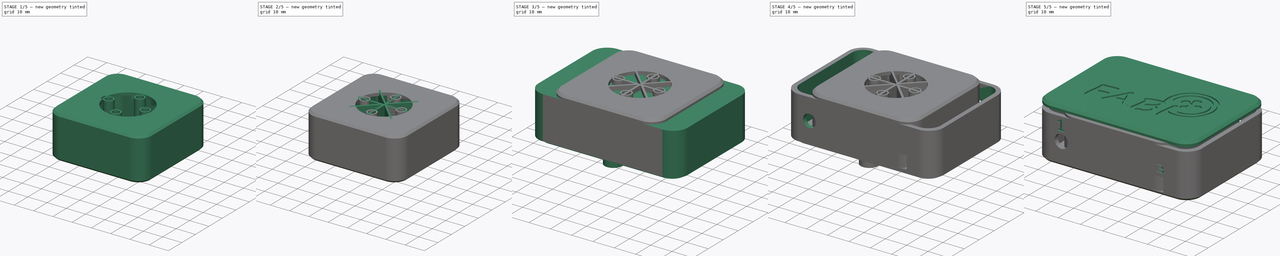
[diagram: build sequence overview — one tinted view per stage of 5, left to right]
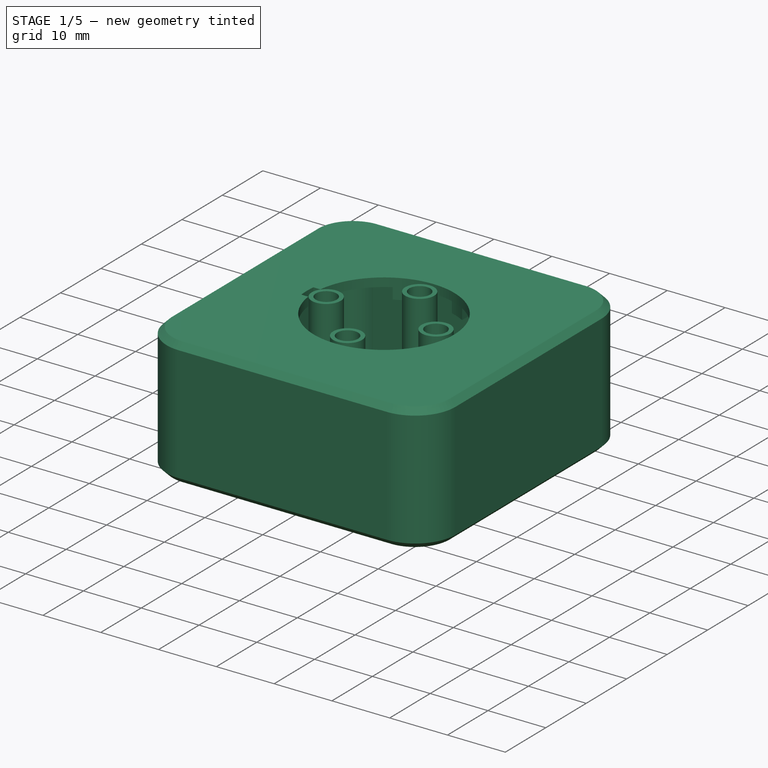
[diagram: stage 1 of 5 — iso view after this stage's code; geometry added in this stage tinted green]
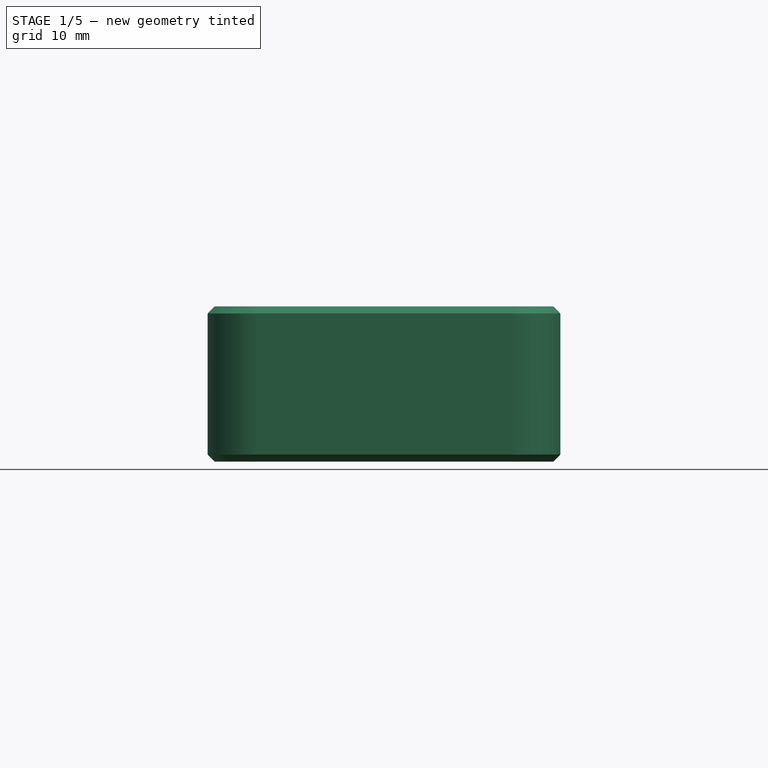
[diagram: stage 1 of 5 — front view after this stage's code; geometry added in this stage tinted green]
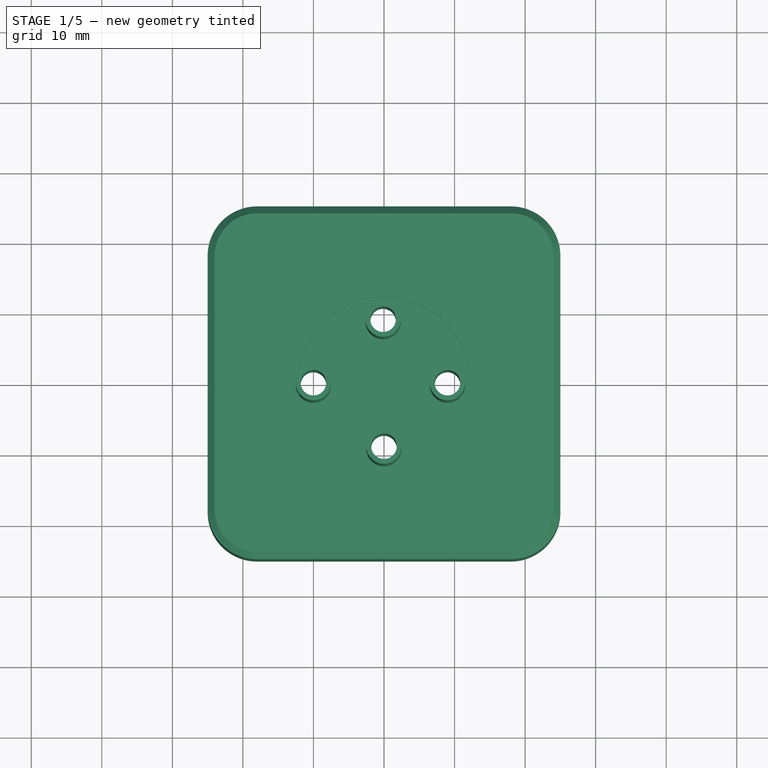
[diagram: stage 1 of 5 — top view after this stage's code; geometry added in this stage tinted green]
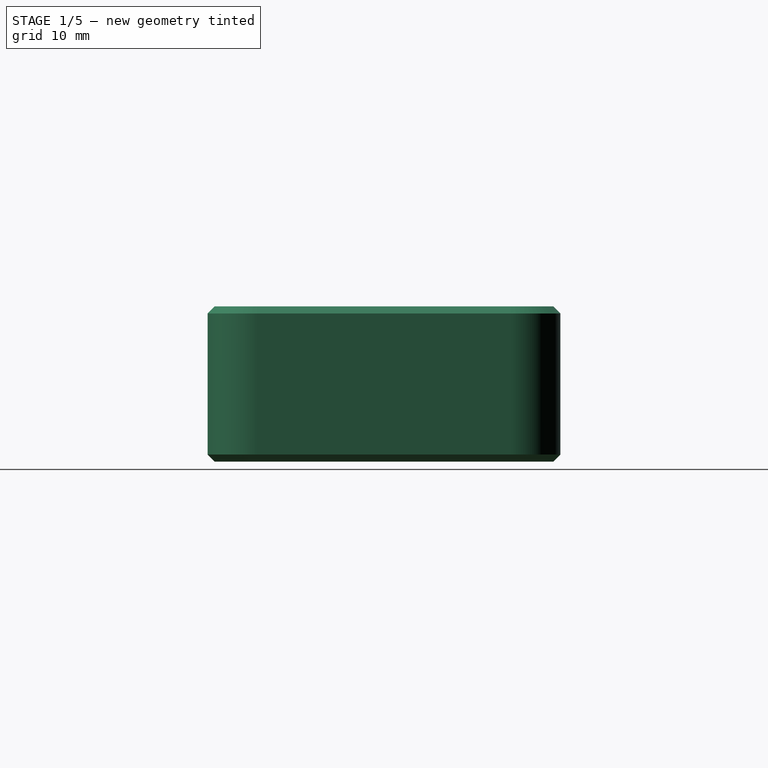
[diagram: stage 1 of 5 — right view after this stage's code; geometry added in this stage tinted green]
FCSTD DOCUMENT  (FreeCAD 0.18R4 (GitTag))
Label: FABI
License: All rights reserved
LicenseURL: http://en.wikipedia.org/wiki/All_rights_reserved
objects: Sketcher::SketchObject×27, PartDesign::Pocket×15, PartDesign::Pad×12, Part::Feature×6, PartDesign::Chamfer×5, Part::Extrusion×4, PartDesign::Body×4, App::Part×4, Part::Part2DObjectPython×3, Part::Cut×3, Part::MultiFuse×2
note: 108 computed .brp shape members not serialized (recipe doc carries the construction recipe); baked Part::Feature solids carry a one-line shape summary decoded from their .brp

FEATURE [PartDesign::Body] Body002
  Group = -> [Sketch013,Sketch017,Sketch019,Sketch012,Sketch020,Pad008,Pocket006,Pocket007,Pocket009,Pocket010,Chamfer003,Pad010,Sketch021,Sketch022,Pad009,Sketch023,Pocket011]
  Origin = -> Origin007
  Tip = -> Pocket011
FEATURE [App::Part] Part002  label="button_30mm"
  Group = -> [Body002]
  License = CC BY 3.0
  LicenseURL = http://creativecommons.org/licenses/by/3.0/
  Origin = -> Origin006
FEATURE [Sketcher::SketchObject] Sketch024
  MapMode = 5
  sketch-geometry (8):
    g0: ArcOfCircle CenterX=18 CenterY=-18 CenterZ=0 NormalX=0 NormalY=0 NormalZ=1 AngleXU=0 Radius=7 StartAngle=4.71239 EndAngle=6.28319
    g1: ArcOfCircle CenterX=18 CenterY=18 CenterZ=0 NormalX=0 NormalY=0 NormalZ=1 AngleXU=0 Radius=7 StartAngle=2.6507e-08 EndAngle=1.5708
    g2: LineSegment StartX=25 StartY=-18 StartZ=0 EndX=25 EndY=18 EndZ=0
    g3: ArcOfCircle CenterX=-18 CenterY=-18 CenterZ=0 NormalX=0 NormalY=0 NormalZ=1 AngleXU=0 Radius=7 StartAngle=3.14159 EndAngle=4.71239
    g4: ArcOfCircle CenterX=-18 CenterY=18 CenterZ=0 NormalX=0 NormalY=0 NormalZ=1 AngleXU=0 Radius=7 StartAngle=1.5708 EndAngle=3.14159
    g5: LineSegment StartX=-25 StartY=18 StartZ=0 EndX=-25 EndY=-18 EndZ=0
    g6: LineSegment StartX=18 StartY=25 StartZ=0 EndX=-18 EndY=25 EndZ=0
    g7: LineSegment StartX=18 StartY=-25 StartZ=0 EndX=-18 EndY=-25 EndZ=0
  constraints (12):
    c: Coincident(g2,g0)
    c: Coincident(g2,g1)
    c: Vertical(g2)
    c: Coincident(g5,g4)
    c: Coincident(g5,g3)
    c: Vertical(g5)
    c: Coincident(g6,g1)
    c: Coincident(g6,g4)
    c: Horizontal(g6)
    c: Coincident(g7,g0)
    c: Coincident(g7,g3)
    c: Horizontal(g7)
FEATURE [Sketcher::SketchObject] Sketch025
  AttachmentOffset = pos=(0,0,1.5) rot=(0,0,1;0rad)
  MapMode = 5
  Placement = pos=(0,0,1.5) rot=(0,0,1;0rad)
  sketch-geometry (8):
    g0: ArcOfCircle CenterX=17.4943 CenterY=-17.5057 CenterZ=0 NormalX=0 NormalY=0 NormalZ=1 AngleXU=0 Radius=5.52676 StartAngle=4.62283 EndAngle=6.37081
    g1: ArcOfCircle CenterX=18.4999 CenterY=18.5001 CenterZ=0 NormalX=0 NormalY=0 NormalZ=1 AngleXU=0 Radius=4.52762 StartAngle=6.17251 EndAngle=7.96463
    g2: LineSegment StartX=22.9999 StartY=18 StartZ=0 EndX=22.9999 EndY=-17.022 EndZ=0
    g3: ArcOfCircle CenterX=-17.4999 CenterY=-17.5001 CenterZ=0 NormalX=0 NormalY=0 NormalZ=1 AngleXU=0 Radius=5.53289 StartAngle=3.05108 EndAngle=4.80301
    g4: ArcOfCircle CenterX=-18.5051 CenterY=18.4949 CenterZ=0 NormalX=0 NormalY=0 NormalZ=1 AngleXU=0 Radius=4.53329 StartAngle=1.45915 EndAngle=3.25324
    g5: LineSegment StartX=-23.0101 StartY=-17 StartZ=0 EndX=-23.0101 EndY=17.9899 EndZ=0
    g6: LineSegment StartX=18 StartY=23 StartZ=0 EndX=-18 EndY=23 EndZ=0
    g7: LineSegment StartX=17 StartY=-23.0103 StartZ=0 EndX=-16.9992 EndY=-23.0103 EndZ=0
  constraints (16):
    c: Coincident(g2,g1)
    c: Coincident(g2,g0)
    c: Vertical(g2)
    c: Coincident(g5,g3)
    c: Coincident(g5,g4)
    c: Vertical(g5)
    c: Coincident(g6,g1)
    c: Coincident(g6,g4)
    c: Horizontal(g6)
    c: Coincident(g7,g0)
    c: Coincident(g7,g3)
    c: Horizontal(g7)
    c: Block(g5)
    c: Block(g7)
    c: Block(g6)
    c: Block(g2)
FEATURE [Sketcher::SketchObject] Sketch026
  AttachmentOffset = pos=(0,0,-28) rot=(0,0,1;0rad)
  MapMode = 5
  Placement = pos=(0,28,1) rot=(1,0,0;1.5708rad)
  sketch-geometry (1):
    g0: Circle CenterX=0 CenterY=9 CenterZ=0 NormalX=0 NormalY=0 NormalZ=1 AngleXU=0 Radius=2
FEATURE [Sketcher::SketchObject] Sketch027
  MapMode = 5
  sketch-geometry (4):
    g0: Circle CenterX=-10 CenterY=0 CenterZ=0 NormalX=0 NormalY=0 NormalZ=1 AngleXU=0 Radius=2
    g1: Circle CenterX=9 CenterY=0 CenterZ=0 NormalX=0 NormalY=0 NormalZ=1 AngleXU=0 Radius=2
    g2: Circle CenterX=0 CenterY=-9 CenterZ=0 NormalX=0 NormalY=0 NormalZ=1 AngleXU=0 Radius=2
    g3: Circle CenterX=0 CenterY=9 CenterZ=0 NormalX=0 NormalY=0 NormalZ=1 AngleXU=0 Radius=2
  constraints (2):
    c: PointOnObject(g0,g-1)
    c: PointOnObject(g1,g-1)
FEATURE [Sketcher::SketchObject] Sketch028
  MapMode = 5
  Placement = pos=(0,0,20) rot=(0,0,1;0rad)
  sketch-geometry (4):
    g0: ArcOfCircle CenterX=0.000385777 CenterY=0 CenterZ=0 NormalX=0 NormalY=0 NormalZ=1 AngleXU=0 Radius=12.1561 StartAngle=3.26398 EndAngle=9.30107
    g1: ArcOfCircle CenterX=0 CenterY=0 CenterZ=0 NormalX=0 NormalY=0 NormalZ=1 AngleXU=0 Radius=13.3545 StartAngle=3.02903 EndAngle=3.25295
    g2: LineSegment StartX=-13.27 StartY=1.5 StartZ=0 EndX=-12.0629 EndY=1.5 EndZ=0
    g3: LineSegment StartX=-13.2718 StartY=-1.48408 StartZ=0 EndX=-12.0648 EndY=-1.48408 EndZ=0
  constraints (8):
    c: PointOnObject(g0,g-1)
    c: Coincident(g1,g-1)
    c: Horizontal(g2)
    c: Horizontal(g3)
    c: Coincident(g2,g0)
    c: Coincident(g3,g0)
    c: Coincident(g2,g1)
    c: Coincident(g3,g1)
FEATURE [PartDesign::Pad] Pad011
  Length = 22
  Length2 = 100
  Profile = -> Sketch024
  Type = 0
FEATURE [PartDesign::Pocket] Pocket012
  BaseFeature = -> Pad011
  Length = 19
  Length2 = 100
  Profile = -> Sketch025
  Reversed = true
  Type = 0
FEATURE [PartDesign::Pocket] Pocket013
  BaseFeature = -> Pocket012
  Length = 6
  Length2 = 100
  Profile = -> Sketch026
  Reversed = true
  Type = 0
FEATURE [PartDesign::Pocket] Pocket014
  BaseFeature = -> Pocket013
  Length = 12
  Length2 = 100
  Profile = -> Sketch027
  Reversed = true
  Type = 0
FEATURE [PartDesign::Pocket] Pocket015
  BaseFeature = -> Pocket014
  Length = 3
  Length2 = 100
  Profile = -> Sketch028
  Reversed = true
  Type = 0
FEATURE [PartDesign::Chamfer] Chamfer004
  Base = -> Pocket015 [Edge9,Edge12,Edge14,Edge15,Edge13,Edge11,Edge6,Edge3,Edge22,Edge10,Edge4,Edge7,Edge21,Edge23,Edge24]
  BaseFeature = -> Pocket015
  Size = 1
FEATURE [Sketcher::SketchObject] Sketch029
  AttachmentOffset = pos=(0,0,1.5) rot=(0,0,1;0rad)
  MapMode = 5
  Placement = pos=(0,0,1.5) rot=(0,0,1;0rad)
  Support = -> [XY_Plane009]
  sketch-geometry (8):
    g0: Circle CenterX=-0.127491 CenterY=9 CenterZ=0 NormalX=0 NormalY=0 NormalZ=1 AngleXU=0 Radius=1.81071
    g1: Circle CenterX=0 CenterY=-9 CenterZ=0 NormalX=0 NormalY=0 NormalZ=1 AngleXU=0 Radius=1.81071
    g2: Circle CenterX=9 CenterY=0 CenterZ=0 NormalX=0 NormalY=0 NormalZ=1 AngleXU=0 Radius=1.81071
    g3: Circle CenterX=-10 CenterY=0 CenterZ=0 NormalX=0 NormalY=0 NormalZ=1 AngleXU=0 Radius=1.81071
    g4: Circle CenterX=-10 CenterY=0 CenterZ=0 NormalX=0 NormalY=0 NormalZ=1 AngleXU=0 Radius=2.5
    g5: Circle CenterX=-0.127491 CenterY=9 CenterZ=0 NormalX=0 NormalY=0 NormalZ=1 AngleXU=0 Radius=2.5
    g6: Circle CenterX=9 CenterY=0 CenterZ=0 NormalX=0 NormalY=0 NormalZ=1 AngleXU=0 Radius=2.5
    g7: Circle CenterX=0 CenterY=-9 CenterZ=0 NormalX=0 NormalY=0 NormalZ=1 AngleXU=0 Radius=2.5
  constraints (3):
    c: Coincident(g4,g3)
    c: Coincident(g5,g0)
    c: Coincident(g7,g1)
FEATURE [Sketcher::SketchObject] Sketch030
  AttachmentOffset = pos=(0,0,18.5) rot=(0,0,1;0rad)
  MapMode = 5
  Placement = pos=(0,0,18.5) rot=(0,0,1;0rad)
  Support = -> [XY_Plane009]
  sketch-geometry (16):
    g0: LineSegment StartX=3.5 StartY=14 StartZ=0 EndX=6 EndY=14 EndZ=0
    g1: LineSegment StartX=6 StartY=14 StartZ=0 EndX=6 EndY=10.7283 EndZ=0
    g2: LineSegment StartX=3.5 StartY=11.7833 StartZ=0 EndX=3.5 EndY=14 EndZ=0
    g3: LineSegment StartX=-6 StartY=14 StartZ=0 EndX=-3.5 EndY=14 EndZ=0
    g4: LineSegment StartX=-3.5 StartY=14 StartZ=0 EndX=-3.5 EndY=11.7833 EndZ=0
    g5: LineSegment StartX=-6 StartY=10.7283 StartZ=0 EndX=-6 EndY=14 EndZ=0
    g6: LineSegment StartX=6 StartY=-10.7283 StartZ=0 EndX=6 EndY=-14 EndZ=0
    g7: LineSegment StartX=6 StartY=-14 StartZ=0 EndX=3.5 EndY=-14 EndZ=0
    g8: LineSegment StartX=3.5 StartY=-14 StartZ=0 EndX=3.5 EndY=-11.7833 EndZ=0
    g9: LineSegment StartX=-3.5 StartY=-11.7833 StartZ=0 EndX=-3.5 EndY=-13.9421 EndZ=0
    g10: LineSegment StartX=-3.5 StartY=-13.9421 StartZ=0 EndX=-5.97519 EndY=-13.9421 EndZ=0
    g11: LineSegment StartX=-5.97519 StartY=-13.9421 StartZ=0 EndX=-5.97519 EndY=-10.7421 EndZ=0
    g12: ArcOfCircle CenterX=0 CenterY=0 CenterZ=0 NormalX=0 NormalY=0 NormalZ=1 AngleXU=0 Radius=12.2921 StartAngle=1.06086 EndAngle=1.28207
    g13: ArcOfCircle CenterX=0 CenterY=0 CenterZ=0 NormalX=0 NormalY=0 NormalZ=1 AngleXU=0 Radius=12.2921 StartAngle=5.00112 EndAngle=5.22232
    g14: ArcOfCircle CenterX=0 CenterY=0 CenterZ=0 NormalX=0 NormalY=0 NormalZ=1 AngleXU=0 Radius=12.2921 StartAngle=4.20477 EndAngle=4.42366
    g15: ArcOfCircle CenterX=0 CenterY=0 CenterZ=0 NormalX=0 NormalY=0 NormalZ=1 AngleXU=0 Radius=12.2921 StartAngle=1.85953 EndAngle=2.08073
  constraints (35):
    c: Coincident(g0,g1)
    c: Coincident(g2,g0)
    c: Horizontal(g0)
    c: Vertical(g1)
    c: Vertical(g2)
    c: Coincident(g3,g4)
    c: Coincident(g5,g3)
    c: Horizontal(g3)
    c: Vertical(g4)
    c: Vertical(g5)
    c: Coincident(g6,g7)
    c: Coincident(g7,g8)
    c: Horizontal(g7)
    c: Vertical(g6)
    c: Vertical(g8)
    c: Coincident(g9,g10)
    c: Coincident(g10,g11)
    c: Horizontal(g10)
    c: Vertical(g9)
    c: Vertical(g11)
    c: Coincident(g12,g-1)
    c: PointOnObject(g13,g6)
    c: Equal(g12,g13)
    c: Coincident(g13,g8)
    c: Coincident(g12,g13)
    c: Coincident(g9,g14)
    c: Equal(g12,g14)
    c: Coincident(g14,g11)
    c: Coincident(g12,g14)
    c: Coincident(g5,g15)
    c: Coincident(g1,g12)
    c: Equal(g12,g15)
    c: Coincident(g12,g2)
    c: Coincident(g15,g4)
    c: Coincident(g12,g15)
FEATURE [PartDesign::Pad] Pad013
  BaseFeature = -> Chamfer004
  Length = 2
  Length2 = 100
  Profile = -> Sketch030
  Type = 0
FEATURE [PartDesign::Pad] Pad012  label="support001"
  BaseFeature = -> Pad013
  Length = 20.5
  Length2 = 100
  Profile = -> Sketch029
  Refine = true
  Type = 0
FEATURE [PartDesign::Body] Body003
  Group = -> [Sketch025,Sketch026,Sketch027,Sketch024,Sketch028,Pad011,Pocket012,Pocket013,Pocket014,Pocket015,Chamfer004,Pad013,Sketch029,Sketch030,Pad012]
  Origin = -> Origin009
  Tip = -> Pad012
FEATURE [App::Part] Part003  label="button_24mm"
  Group = -> [Body003]
  License = CC BY 3.0
  LicenseURL = http://creativecommons.org/licenses/by/3.0/
  Origin = -> Origin008
note: 3 file-system paths scrubbed to <path> (originals preserved in the JSON sidecar)
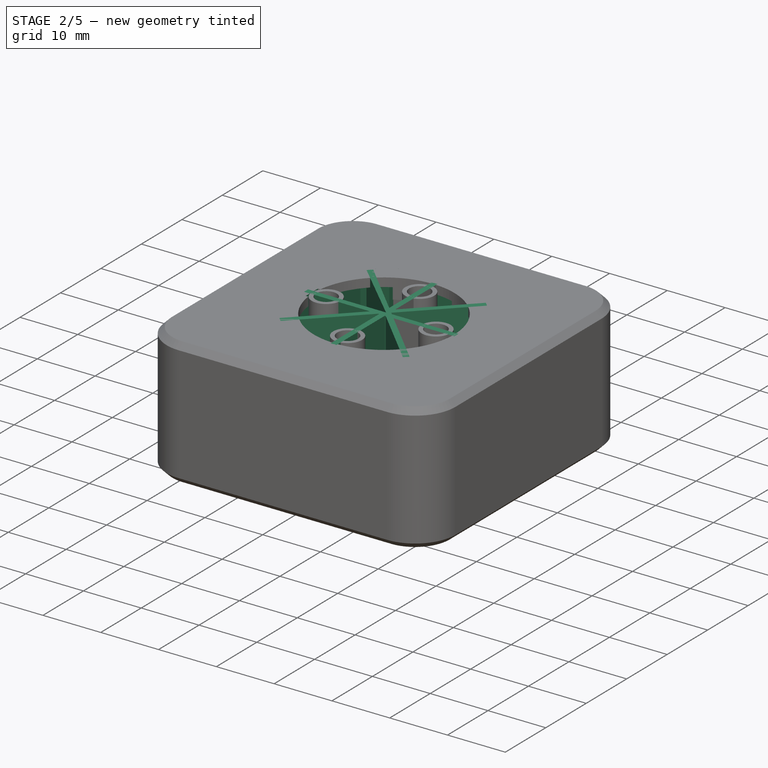
[diagram: stage 2 of 5 — iso view after this stage's code; geometry added in this stage tinted green]
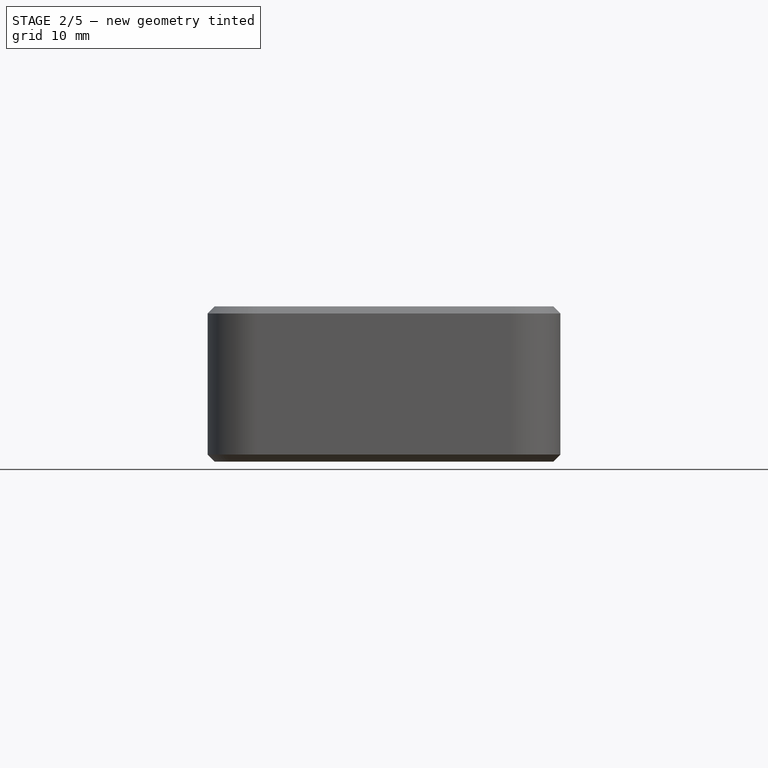
[diagram: stage 2 of 5 — front view after this stage's code; geometry added in this stage tinted green]
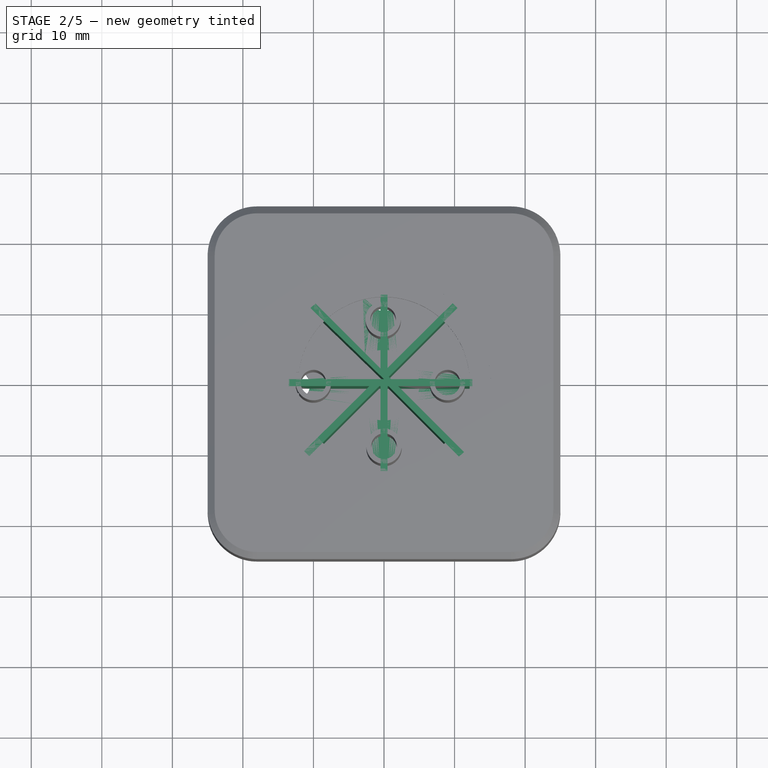
[diagram: stage 2 of 5 — top view after this stage's code; geometry added in this stage tinted green]
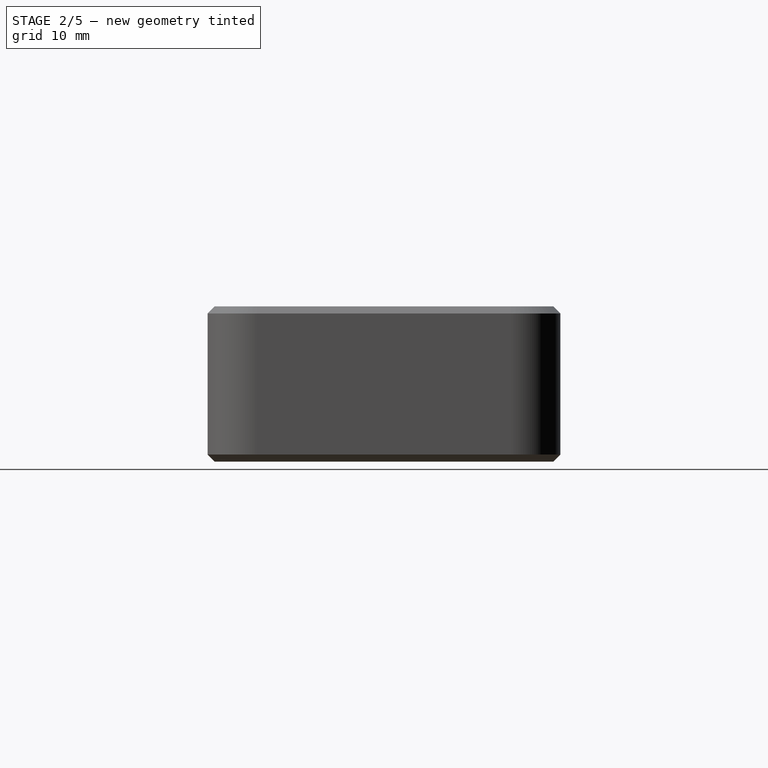
[diagram: stage 2 of 5 — right view after this stage's code; geometry added in this stage tinted green]
FEATURE [App::Part] Part001  label="cover"
  Group = -> [path4500,path4500004,path4500006,path4500008,path4500010,path4500055,Cut001,Fusion001,Extrude003,Body001,Cut]
  License = CC BY 3.0
  LicenseURL = http://creativecommons.org/licenses/by/3.0/
  Origin = -> Origin
FEATURE [Sketcher::SketchObject] Sketch012
  MapMode = 5
  sketch-geometry (8):
    g0: ArcOfCircle CenterX=18 CenterY=-18 CenterZ=0 NormalX=0 NormalY=0 NormalZ=1 AngleXU=0 Radius=7 StartAngle=4.71239 EndAngle=6.28319
    g1: ArcOfCircle CenterX=18 CenterY=18 CenterZ=0 NormalX=0 NormalY=0 NormalZ=1 AngleXU=0 Radius=7 StartAngle=2.6507e-08 EndAngle=1.5708
    g2: LineSegment StartX=25 StartY=-18 StartZ=0 EndX=25 EndY=18 EndZ=0
    g3: ArcOfCircle CenterX=-18 CenterY=-18 CenterZ=0 NormalX=0 NormalY=0 NormalZ=1 AngleXU=0 Radius=7 StartAngle=3.14159 EndAngle=4.71239
    g4: ArcOfCircle CenterX=-18 CenterY=18 CenterZ=0 NormalX=0 NormalY=0 NormalZ=1 AngleXU=0 Radius=7 StartAngle=1.5708 EndAngle=3.14159
    g5: LineSegment StartX=-25 StartY=18 StartZ=0 EndX=-25 EndY=-18 EndZ=0
    g6: LineSegment StartX=18 StartY=25 StartZ=0 EndX=-18 EndY=25 EndZ=0
    g7: LineSegment StartX=18 StartY=-25 StartZ=0 EndX=-18 EndY=-25 EndZ=0
  constraints (12):
    c: Coincident(g2,g0)
    c: Coincident(g2,g1)
    c: Vertical(g2)
    c: Coincident(g5,g4)
    c: Coincident(g5,g3)
    c: Vertical(g5)
    c: Coincident(g6,g1)
    c: Coincident(g6,g4)
    c: Horizontal(g6)
    c: Coincident(g7,g0)
    c: Coincident(g7,g3)
    c: Horizontal(g7)
FEATURE [Sketcher::SketchObject] Sketch013
  AttachmentOffset = pos=(0,0,1.5) rot=(0,0,1;0rad)
  MapMode = 5
  Placement = pos=(0,0,1.5) rot=(0,0,1;0rad)
  sketch-geometry (8):
    g0: ArcOfCircle CenterX=17.4943 CenterY=-17.5057 CenterZ=0 NormalX=0 NormalY=0 NormalZ=1 AngleXU=0 Radius=5.52676 StartAngle=4.62283 EndAngle=6.37081
    g1: ArcOfCircle CenterX=18.4999 CenterY=18.5001 CenterZ=0 NormalX=0 NormalY=0 NormalZ=1 AngleXU=0 Radius=4.52762 StartAngle=6.17251 EndAngle=7.96463
    g2: LineSegment StartX=22.9999 StartY=18 StartZ=0 EndX=22.9999 EndY=-17.022 EndZ=0
    g3: ArcOfCircle CenterX=-17.4999 CenterY=-17.5001 CenterZ=0 NormalX=0 NormalY=0 NormalZ=1 AngleXU=0 Radius=5.53289 StartAngle=3.05108 EndAngle=4.80301
    g4: ArcOfCircle CenterX=-18.5051 CenterY=18.4949 CenterZ=0 NormalX=0 NormalY=0 NormalZ=1 AngleXU=0 Radius=4.53329 StartAngle=1.45915 EndAngle=3.25324
    g5: LineSegment StartX=-23.0101 StartY=-17 StartZ=0 EndX=-23.0101 EndY=17.9899 EndZ=0
    g6: LineSegment StartX=18 StartY=23 StartZ=0 EndX=-18 EndY=23 EndZ=0
    g7: LineSegment StartX=17 StartY=-23.0103 StartZ=0 EndX=-16.9992 EndY=-23.0103 EndZ=0
  constraints (16):
    c: Coincident(g2,g1)
    c: Coincident(g2,g0)
    c: Vertical(g2)
    c: Coincident(g5,g3)
    c: Coincident(g5,g4)
    c: Vertical(g5)
    c: Coincident(g6,g1)
    c: Coincident(g6,g4)
    c: Horizontal(g6)
    c: Coincident(g7,g0)
    c: Coincident(g7,g3)
    c: Horizontal(g7)
    c: Block(g5)
    c: Block(g7)
    c: Block(g6)
    c: Block(g2)
FEATURE [Sketcher::SketchObject] Sketch017
  AttachmentOffset = pos=(0,0,-28) rot=(0,0,1;0rad)
  MapMode = 5
  Placement = pos=(0,28,1) rot=(1,0,0;1.5708rad)
  sketch-geometry (1):
    g0: Circle CenterX=0 CenterY=9 CenterZ=0 NormalX=0 NormalY=0 NormalZ=1 AngleXU=0 Radius=2
FEATURE [Sketcher::SketchObject] Sketch019
  MapMode = 5
  sketch-geometry (5):
    g0: Circle CenterX=-12.5 CenterY=0 CenterZ=0 NormalX=0 NormalY=0 NormalZ=1 AngleXU=0 Radius=2
    g1: Circle CenterX=12.5 CenterY=0 CenterZ=0 NormalX=0 NormalY=0 NormalZ=1 AngleXU=0 Radius=2
    g2: Circle CenterX=0 CenterY=-12.5 CenterZ=0 NormalX=0 NormalY=0 NormalZ=1 AngleXU=0 Radius=2
    g3: Circle CenterX=0 CenterY=12.5 CenterZ=0 NormalX=0 NormalY=0 NormalZ=1 AngleXU=0 Radius=2
    g4: Circle CenterX=0 CenterY=0 CenterZ=0 NormalX=0 NormalY=0 NormalZ=1 AngleXU=0 Radius=5
  constraints (3):
    c: PointOnObject(g0,g-1)
    c: PointOnObject(g1,g-1)
    c: Coincident(g4,g-1)
FEATURE [Sketcher::SketchObject] Sketch020
  MapMode = 5
  Placement = pos=(0,0,20) rot=(0,0,1;0rad)
  sketch-geometry (1):
    g0: Circle CenterX=0 CenterY=0 CenterZ=0 NormalX=0 NormalY=0 NormalZ=1 AngleXU=0 Radius=15.1372
  constraints (1):
    c: PointOnObject(g0,g-1)
FEATURE [PartDesign::Pad] Pad008
  Length = 22
  Length2 = 100
  Profile = -> Sketch012
  Type = 0
FEATURE [PartDesign::Pocket] Pocket006
  BaseFeature = -> Pad008
  Length = 19
  Length2 = 100
  Profile = -> Sketch013
  Reversed = true
  Type = 0
FEATURE [PartDesign::Pocket] Pocket007
  BaseFeature = -> Pocket006
  Length = 6
  Length2 = 100
  Profile = -> Sketch017
  Reversed = true
  Type = 0
FEATURE [PartDesign::Pocket] Pocket009
  BaseFeature = -> Pocket007
  Length = 12
  Length2 = 100
  Profile = -> Sketch019
  Reversed = true
  Type = 0
FEATURE [PartDesign::Pocket] Pocket010
  BaseFeature = -> Pocket009
  Length = 3
  Length2 = 100
  Profile = -> Sketch020
  Reversed = true
  Type = 0
FEATURE [PartDesign::Chamfer] Chamfer003
  Base = -> Pocket010 [Edge9,Edge12,Edge14,Edge15,Edge13,Edge11,Edge6,Edge3,Edge22,Edge10,Edge4,Edge7,Edge21,Edge23,Edge25,Edge24]
  BaseFeature = -> Pocket010
  Size = 1
FEATURE [Sketcher::SketchObject] Sketch021
  AttachmentOffset = pos=(0,0,1.5) rot=(0,0,1;0rad)
  MapMode = 5
  Placement = pos=(0,0,1.5) rot=(0,0,1;0rad)
  Support = -> [XY_Plane007]
  sketch-geometry (108):
    g0: LineSegment StartX=-1.08501 StartY=0.5 StartZ=0 EndX=-12.5 EndY=0.5 EndZ=0
    g1: LineSegment StartX=0.5 StartY=-0.5 StartZ=0 EndX=0.5 EndY=-12.5 EndZ=0
    g2: LineSegment StartX=0.5 StartY=-0.5 StartZ=0 EndX=0.644175 EndY=-0.5 EndZ=0
    g3: LineSegment StartX=0.5 StartY=2.07862 StartZ=0 EndX=9.72929 EndY=11.2707 EndZ=0
    g4: LineSegment StartX=0.660588 StartY=0.839412 StartZ=0 EndX=1 EndY=0.5 EndZ=0
    g5: LineSegment StartX=-0.5 StartY=2 StartZ=0 EndX=-0.5 EndY=12.4858 EndZ=0
    g6: LineSegment StartX=0 StartY=0.5 StartZ=0 EndX=-10.4261 EndY=10.5737 EndZ=0
    g7: LineSegment StartX=-1.08501 StartY=0.5 StartZ=0 EndX=0 EndY=0.5 EndZ=0
    g8: LineSegment StartX=-0.680918 StartY=-0.5 StartZ=0 EndX=-0.5 EndY=-0.5 EndZ=0
    g9: LineSegment StartX=-0.680918 StartY=-0.5 StartZ=0 EndX=-10.606 EndY=-10.4096 EndZ=0
    g10: LineSegment StartX=2 StartY=-0.5 StartZ=0 EndX=12.519 EndY=-0.5 EndZ=0
    g11: LineSegment StartX=2 StartY=-0.5 StartZ=0 EndX=11.3505 EndY=-9.85049 EndZ=0
    g12: LineSegment StartX=9.72929 StartY=11.2707 StartZ=0 EndX=10.4182 EndY=10.5818 EndZ=0
    g13: LineSegment StartX=10.4182 StartY=10.5818 StartZ=0 EndX=0.660588 EndY=0.839412 EndZ=0
    g14: LineSegment StartX=14.8752 StartY=0.5 StartZ=0 EndX=14.8752 EndY=-0.5 EndZ=0
    g15: LineSegment StartX=11.3505 StartY=-9.85049 StartZ=0 EndX=10.6164 EndY=-10.4753 EndZ=0
    g16: LineSegment StartX=-0.5 StartY=-14.8845 StartZ=0 EndX=0.5 EndY=-14.8845 EndZ=0
    g17: LineSegment StartX=-11.3245 StartY=-9.69817 StartZ=0 EndX=-10.606 EndY=-10.4096 EndZ=0
    g18: LineSegment StartX=-14.8477 StartY=0.5 StartZ=0 EndX=-14.8477 EndY=-0.5 EndZ=0
    g19: LineSegment StartX=-9.71926 StartY=11.2193 StartZ=0 EndX=-10.4261 EndY=10.5737 EndZ=0
    g20: LineSegment StartX=-0.5 StartY=14.854 StartZ=0 EndX=0.5 EndY=14.854 EndZ=0
    g21: LineSegment StartX=-9.71926 StartY=11.2193 StartZ=0 EndX=-0.5 EndY=2 EndZ=0
    g22: LineSegment StartX=0.5 StartY=14.854 StartZ=0 EndX=0.5 EndY=13.4858 EndZ=0
    g23: LineSegment StartX=14.8752 StartY=0.5 StartZ=0 EndX=13.519 EndY=0.5 EndZ=0
    g24: LineSegment StartX=10.6164 StartY=-10.4753 StartZ=0 EndX=0.644175 EndY=-0.5 EndZ=0
    g25: LineSegment StartX=-0.5 StartY=-14.8845 StartZ=0 EndX=-0.5 EndY=-13.5 EndZ=0
    g26: LineSegment StartX=-11.3245 StartY=-9.69817 StartZ=0 EndX=-2.08906 EndY=-0.5 EndZ=0
    g27: LineSegment StartX=-14.8477 StartY=-0.5 StartZ=0 EndX=-13.5 EndY=-0.5 EndZ=0
    g28: LineSegment StartX=-13.5 StartY=3 StartZ=0 EndX=-12.5 EndY=3 EndZ=0
    g29: LineSegment StartX=-12.5 StartY=3 StartZ=0 EndX=-12.5 EndY=0.5 EndZ=0
    g30: LineSegment StartX=-12.5 StartY=-3 StartZ=0 EndX=-13.5 EndY=-3 EndZ=0
    g31: LineSegment StartX=-13.5 StartY=-3 StartZ=0 EndX=-13.5 EndY=-0.5 EndZ=0
    g32: LineSegment StartX=-3 StartY=13.4858 StartZ=0 EndX=-0.5 EndY=13.4858 EndZ=0
    g33: LineSegment StartX=3 StartY=13.4858 StartZ=0 EndX=3 EndY=12.4858 EndZ=0
    g34: LineSegment StartX=3 StartY=12.4858 StartZ=0 EndX=0.5 EndY=12.4858 EndZ=0
    g35: LineSegment StartX=-3 StartY=12.4858 StartZ=0 EndX=-3 EndY=13.4858 EndZ=0
    g36: LineSegment StartX=12.519 StartY=3 StartZ=0 EndX=13.519 EndY=3 EndZ=0
    g37: LineSegment StartX=13.519 StartY=3 StartZ=0 EndX=13.519 EndY=0.5 EndZ=0
    g38: LineSegment StartX=13.519 StartY=-3 StartZ=0 EndX=12.519 EndY=-3 EndZ=0
    g39: LineSegment StartX=12.519 StartY=-3 StartZ=0 EndX=12.519 EndY=-0.5 EndZ=0
    g40: LineSegment StartX=3 StartY=-12.5 StartZ=0 EndX=0.5 EndY=-12.5 EndZ=0
    g41: LineSegment StartX=-3 StartY=-12.5 StartZ=0 EndX=-3 EndY=-13.5 EndZ=0
    g42: LineSegment StartX=-3 StartY=-13.5 StartZ=0 EndX=-0.5 EndY=-13.5 EndZ=0
    g43: LineSegment StartX=3 StartY=-13.5 StartZ=0 EndX=3 EndY=-12.5 EndZ=0
    g44: LineSegment StartX=-0.5 StartY=-12.5 StartZ=0 EndX=-0.5 EndY=-0.5 EndZ=0
    g45: LineSegment StartX=-0.5 StartY=-12.5 StartZ=0 EndX=-3 EndY=-12.5 EndZ=0
    g46: LineSegment StartX=0.5 StartY=-13.5 StartZ=0 EndX=0.5 EndY=-14.8845 EndZ=0
    g47: LineSegment StartX=0.5 StartY=-13.5 StartZ=0 EndX=3 EndY=-13.5 EndZ=0
    g48: LineSegment StartX=12.519 StartY=0.5 StartZ=0 EndX=1 EndY=0.5 EndZ=0
    g49: LineSegment StartX=12.519 StartY=0.5 StartZ=0 EndX=12.519 EndY=3 EndZ=0
    g50: LineSegment StartX=13.519 StartY=-0.5 StartZ=0 EndX=13.519 EndY=-3 EndZ=0
    g51: LineSegment StartX=13.519 StartY=-0.5 StartZ=0 EndX=14.8752 EndY=-0.5 EndZ=0
    g52: LineSegment StartX=-0.5 StartY=13.4858 StartZ=0 EndX=-0.5 EndY=14.854 EndZ=0
    g53: LineSegment StartX=0.5 StartY=13.4858 StartZ=0 EndX=3 EndY=13.4858 EndZ=0
    g54: LineSegment StartX=0.5 StartY=12.4858 StartZ=0 EndX=0.5 EndY=2.07862 EndZ=0
    g55: LineSegment StartX=-0.5 StartY=12.4858 StartZ=0 EndX=-3 EndY=12.4858 EndZ=0
    g56: LineSegment StartX=-13.5 StartY=0.5 StartZ=0 EndX=-13.5 EndY=3 EndZ=0
    g57: LineSegment StartX=-12.5 StartY=-0.5 StartZ=0 EndX=-2.08906 EndY=-0.5 EndZ=0
    g58: LineSegment StartX=-12.5 StartY=-0.5 StartZ=0 EndX=-12.5 EndY=-3 EndZ=0
    g59: LineSegment StartX=-13.5 StartY=0.5 StartZ=0 EndX=-14.8477 EndY=0.5 EndZ=0
    g60: LineSegment StartX=-17 StartY=-13 StartZ=0 EndX=-16 EndY=-13 EndZ=0
    g61: LineSegment StartX=-16 StartY=-13 StartZ=0 EndX=-16 EndY=-16.5 EndZ=0
    g62: LineSegment StartX=-16 StartY=-22 StartZ=0 EndX=-17 EndY=-22 EndZ=0
    g63: LineSegment StartX=-17 StartY=-22 StartZ=0 EndX=-17 EndY=-17.5 EndZ=0
    g64: LineSegment StartX=-21.5 StartY=-16.5 StartZ=0 EndX=-17 EndY=-16.5 EndZ=0
    g65: LineSegment StartX=-11 StartY=-16.5 StartZ=0 EndX=-11 EndY=-17.5 EndZ=0
    g66: LineSegment StartX=-11 StartY=-17.5 StartZ=0 EndX=-16 EndY=-17.5 EndZ=0
    g67: LineSegment StartX=-21.5 StartY=-17.5 StartZ=0 EndX=-21.5 EndY=-16.5 EndZ=0
    g68: LineSegment StartX=-16 StartY=-17.5 StartZ=0 EndX=-16 EndY=-22 EndZ=0
    g69: LineSegment StartX=-16 StartY=-16.5 StartZ=0 EndX=-11 EndY=-16.5 EndZ=0
    g70: LineSegment StartX=-17 StartY=-16.5 StartZ=0 EndX=-17 EndY=-13 EndZ=0
    g71: LineSegment StartX=-17 StartY=-17.5 StartZ=0 EndX=-21.5 EndY=-17.5 EndZ=0
    g72: LineSegment StartX=13 StartY=-13 StartZ=0 EndX=14 EndY=-13 EndZ=0
    g73: LineSegment StartX=14 StartY=-13 StartZ=0 EndX=14 EndY=-16.5 EndZ=0
    g74: LineSegment StartX=14 StartY=-22 StartZ=0 EndX=13 EndY=-22 EndZ=0
    g75: LineSegment StartX=13 StartY=-22 StartZ=0 EndX=13 EndY=-17.5 EndZ=0
    g76: LineSegment StartX=8.5 StartY=-16.5 StartZ=0 EndX=13 EndY=-16.5 EndZ=0
    g77: LineSegment StartX=19 StartY=-16.5 StartZ=0 EndX=19 EndY=-17.5 EndZ=0
    g78: LineSegment StartX=19 StartY=-17.5 StartZ=0 EndX=14 EndY=-17.5 EndZ=0
    g79: LineSegment StartX=8.5 StartY=-17.5 StartZ=0 EndX=8.5 EndY=-16.5 EndZ=0
    g80: LineSegment StartX=14 StartY=-17.5 StartZ=0 EndX=14 EndY=-22 EndZ=0
    g81: LineSegment StartX=14 StartY=-16.5 StartZ=0 EndX=19 EndY=-16.5 EndZ=0
    g82: LineSegment StartX=13 StartY=-16.5 StartZ=0 EndX=13 EndY=-13 EndZ=0
    g83: LineSegment StartX=13 StartY=-17.5 StartZ=0 EndX=8.5 EndY=-17.5 EndZ=0
    g84: LineSegment StartX=12.5 StartY=21.5 StartZ=0 EndX=13.5 EndY=21.5 EndZ=0
    g85: LineSegment StartX=13.5 StartY=21.5 StartZ=0 EndX=13.5 EndY=18 EndZ=0
    g86: LineSegment StartX=13.5 StartY=12.5 StartZ=0 EndX=12.5 EndY=12.5 EndZ=0
    g87: LineSegment StartX=12.5 StartY=12.5 StartZ=0 EndX=12.5 EndY=17 EndZ=0
    g88: LineSegment StartX=8 StartY=18 StartZ=0 EndX=12.5 EndY=18 EndZ=0
    g89: LineSegment StartX=18.5 StartY=18 StartZ=0 EndX=18.5 EndY=17 EndZ=0
    g90: LineSegment StartX=18.5 StartY=17 StartZ=0 EndX=13.5 EndY=17 EndZ=0
    g91: LineSegment StartX=8 StartY=17 StartZ=0 EndX=8 EndY=18 EndZ=0
    g92: LineSegment StartX=13.5 StartY=17 StartZ=0 EndX=13.5 EndY=12.5 EndZ=0
    g93: LineSegment StartX=13.5 StartY=18 StartZ=0 EndX=18.5 EndY=18 EndZ=0
    g94: LineSegment StartX=12.5 StartY=18 StartZ=0 EndX=12.5 EndY=21.5 EndZ=0
    g95: LineSegment StartX=12.5 StartY=17 StartZ=0 EndX=8 EndY=17 EndZ=0
    g96: LineSegment StartX=-17 StartY=21.5 StartZ=0 EndX=-16 EndY=21.5 EndZ=0
    g97: LineSegment StartX=-16 StartY=21.5 StartZ=0 EndX=-16 EndY=18 EndZ=0
    g98: LineSegment StartX=-16 StartY=12.5 StartZ=0 EndX=-17 EndY=12.5 EndZ=0
    g99: LineSegment StartX=-17 StartY=12.5 StartZ=0 EndX=-17 EndY=17 EndZ=0
    g100: LineSegment StartX=-21.5 StartY=18 StartZ=0 EndX=-17 EndY=18 EndZ=0
    g101: LineSegment StartX=-11 StartY=18 StartZ=0 EndX=-11 EndY=17 EndZ=0
    g102: LineSegment StartX=-11 StartY=17 StartZ=0 EndX=-16 EndY=17 EndZ=0
    g103: LineSegment StartX=-21.5 StartY=17 StartZ=0 EndX=-21.5 EndY=18 EndZ=0
    g104: LineSegment StartX=-16 StartY=17 StartZ=0 EndX=-16 EndY=12.5 EndZ=0
    g105: LineSegment StartX=-16 StartY=18 StartZ=0 EndX=-11 EndY=18 EndZ=0
    g106: LineSegment StartX=-17 StartY=18 StartZ=0 EndX=-17 EndY=21.5 EndZ=0
    g107: LineSegment StartX=-17 StartY=17 StartZ=0 EndX=-21.5 EndY=17 EndZ=0
  constraints (194):
    c: Coincident(g8,g44)
    c: Coincident(g2,g1)
    c: Coincident(g3,g54)
    c: Coincident(g5,g21)
    c: Coincident(g6,g7)
    c: Coincident(g7,g0)
    c: Coincident(g57,g26)
    c: Coincident(g9,g8)
    c: Coincident(g2,g24)
    c: Tangent(g2,g10)
    c: Coincident(g11,g10)
    c: Tangent(g4,g11)
    c: Coincident(g48,g4)
    c: Coincident(g4,g13)
    c: Coincident(g12,g3)
    c: Coincident(g12,g13)
    c: Vertical(g14)
    c: Horizontal(g16)
    c: Vertical(g18)
    c: Horizontal(g20)
    c: Coincident(g19,g21)
    c: Coincident(g19,g6)
    c: Coincident(g20,g52)
    c: Coincident(g20,g22)
    c: Coincident(g23,g14)
    c: Coincident(g14,g51)
    c: Coincident(g11,g15)
    c: Coincident(g24,g15)
    c: Coincident(g16,g46)
    c: Coincident(g16,g25)
    c: Coincident(g9,g17)
    c: Coincident(g17,g26)
    c: Coincident(g18,g59)
    c: Coincident(g18,g27)
    c: Coincident(g28,g29)
    c: Coincident(g58,g30)
    c: Coincident(g30,g31)
    c: Coincident(g56,g28)
    c: Horizontal(g28)
    c: Horizontal(g30)
    c: Vertical(g29)
    c: Vertical(g31)
    c: Coincident(g53,g33)
    c: Coincident(g33,g34)
    c: Coincident(g55,g35)
    c: Coincident(g35,g32)
    c: Horizontal(g32)
    c: Horizontal(g34)
    c: Vertical(g33)
    c: Vertical(g35)
    c: Coincident(g36,g37)
    c: Coincident(g50,g38)
    c: Coincident(g38,g39)
    c: Coincident(g49,g36)
    c: Horizontal(g36)
    c: Horizontal(g38)
    c: Vertical(g37)
    c: Vertical(g39)
    c: Coincident(g45,g41)
    c: Coincident(g41,g42)
    c: Coincident(g47,g43)
    c: Coincident(g43,g40)
    c: Horizontal(g40)
    c: Horizontal(g42)
    c: Vertical(g41)
    c: Vertical(g43)
    c: Tangent(g25,g44)
    c: Coincident(g45,g44)
    c: Tangent(g40,g45)
    c: Coincident(g1,g40)
    c: Tangent(g1,g46)
    c: Coincident(g42,g25)
    c: Coincident(g47,g46)
    c: Tangent(g42,g47)
    c: Tangent(g23,g48)
    c: Coincident(g49,g48)
    c: Tangent(g39,g49)
    c: Coincident(g37,g23)
    c: Tangent(g37,g50)
    c: Coincident(g10,g39)
    c: Coincident(g51,g50)
    c: Tangent(g10,g51)
    c: Tangent(g5,g52)
    c: Coincident(g32,g52)
    c: Tangent(g32,g53)
    c: Coincident(g22,g53)
    c: Tangent(g22,g54)
    c: Coincident(g34,g54)
    c: Coincident(g55,g5)
    c: Tangent(g34,g55)
    c: Tangent(g31,g56)
    c: Coincident(g27,g31)
    c: Tangent(g27,g57)
    c: Coincident(g58,g57)
    c: Tangent(g29,g58)
    c: Coincident(g0,g29)
    c: Coincident(g59,g56)
    c: Tangent(g0,g59)
    c: Coincident(g60,g61)
    c: Coincident(g68,g62)
    c: Coincident(g62,g63)
    c: Coincident(g70,g60)
    c: Horizontal(g60)
    c: Horizontal(g62)
    c: Vertical(g61)
    c: Vertical(g63)
    c: Coincident(g69,g65)
    c: Coincident(g65,g66)
    c: Coincident(g71,g67)
    c: Coincident(g67,g64)
    c: Horizontal(g64)
    c: Horizontal(g66)
    c: Vertical(g65)
    c: Vertical(g67)
    c: Tangent(g61,g68)
    c: Coincident(g69,g61)
    c: Tangent(g64,g69)
    c: Coincident(g70,g64)
    c: Tangent(g63,g70)
    c: Coincident(g66,g68)
    c: Coincident(g71,g63)
    c: Tangent(g66,g71)
    c: Coincident(g72,g73)
    c: Coincident(g80,g74)
    c: Coincident(g74,g75)
    c: Coincident(g82,g72)
    c: Horizontal(g72)
    c: Horizontal(g74)
    c: Vertical(g73)
    c: Vertical(g75)
    c: Coincident(g81,g77)
    c: Coincident(g77,g78)
    c: Coincident(g83,g79)
    c: Coincident(g79,g76)
    c: Horizontal(g76)
    c: Horizontal(g78)
    c: Vertical(g77)
    c: Vertical(g79)
    c: Tangent(g73,g80)
    c: Coincident(g81,g73)
    c: Tangent(g76,g81)
    c: Coincident(g82,g76)
    c: Tangent(g75,g82)
    c: Coincident(g78,g80)
    c: Coincident(g83,g75)
    c: Tangent(g78,g83)
    c: Coincident(g84,g85)
    c: Coincident(g92,g86)
    c: Coincident(g86,g87)
    c: Coincident(g94,g84)
    c: Horizontal(g84)
    c: Horizontal(g86)
    c: Vertical(g85)
    c: Vertical(g87)
    c: Coincident(g93,g89)
    c: Coincident(g89,g90)
    c: Coincident(g95,g91)
    c: Coincident(g91,g88)
    c: Horizontal(g88)
    c: Horizontal(g90)
    c: Vertical(g89)
    c: Vertical(g91)
    c: Tangent(g85,g92)
    c: Coincident(g93,g85)
    c: Tangent(g88,g93)
    c: Coincident(g94,g88)
    c: Tangent(g87,g94)
    c: Coincident(g90,g92)
    c: Coincident(g95,g87)
    c: Tangent(g90,g95)
    c: Coincident(g96,g97)
    c: Coincident(g104,g98)
    c: Coincident(g98,g99)
    c: Coincident(g106,g96)
    c: Horizontal(g96)
    c: Horizontal(g98)
    c: Vertical(g97)
    c: Vertical(g99)
    c: Coincident(g105,g101)
    c: Coincident(g101,g102)
    c: Coincident(g107,g103)
    c: Coincident(g103,g100)
    c: Horizontal(g100)
    c: Horizontal(g102)
    c: Vertical(g101)
    c: Vertical(g103)
    c: Tangent(g97,g104)
    c: Coincident(g105,g97)
    c: Tangent(g100,g105)
    c: Coincident(g106,g100)
    c: Tangent(g99,g106)
    c: Coincident(g102,g104)
    c: Coincident(g107,g99)
    c: Tangent(g102,g107)
FEATURE [Sketcher::SketchObject] Sketch022
  AttachmentOffset = pos=(0,0,18.5) rot=(0,0,1;0rad)
  MapMode = 5
  Placement = pos=(0,0,18.5) rot=(0,0,1;0rad)
  Support = -> [XY_Plane007]
  sketch-geometry (16):
    g0: LineSegment StartX=-3.49083 StartY=17 StartZ=0 EndX=-6 EndY=17 EndZ=0
    g1: LineSegment StartX=-6 StartY=17 StartZ=0 EndX=-6 EndY=14 EndZ=0
    g2: LineSegment StartX=-3.49083 StartY=14.8261 StartZ=0 EndX=-3.49083 EndY=17 EndZ=0
    g3: LineSegment StartX=6 StartY=17 StartZ=0 EndX=3.49083 EndY=17 EndZ=0
    g4: LineSegment StartX=3.49083 StartY=17 StartZ=0 EndX=3.49083 EndY=14.8261 EndZ=0
    g5: LineSegment StartX=6 StartY=14 StartZ=0 EndX=6 EndY=17 EndZ=0
    g6: LineSegment StartX=-6 StartY=-14 StartZ=0 EndX=-6 EndY=-17 EndZ=0
    g7: LineSegment StartX=-6 StartY=-17 StartZ=0 EndX=-3.49083 EndY=-17 EndZ=0
    g8: LineSegment StartX=-3.49083 StartY=-17 StartZ=0 EndX=-3.49083 EndY=-14.8261 EndZ=0
    g9: LineSegment StartX=3.49083 StartY=-14.8261 StartZ=0 EndX=3.49083 EndY=-17 EndZ=0
    g10: LineSegment StartX=3.49083 StartY=-17 StartZ=0 EndX=6 EndY=-17 EndZ=0
    g11: LineSegment StartX=6 StartY=-17 StartZ=0 EndX=6 EndY=-14 EndZ=0
    g12: ArcOfCircle CenterX=0 CenterY=0 CenterZ=0 NormalX=0 NormalY=0 NormalZ=1 AngleXU=0 Radius=15.2315 StartAngle=1.80204 EndAngle=1.97569
    g13: ArcOfCircle CenterX=0 CenterY=0 CenterZ=0 NormalX=0 NormalY=0 NormalZ=1 AngleXU=0 Radius=15.2315 StartAngle=1.1659 EndAngle=1.33956
    g14: ArcOfCircle CenterX=0 CenterY=0 CenterZ=0 NormalX=0 NormalY=0 NormalZ=1 AngleXU=0 Radius=15.2315 StartAngle=4.3075 EndAngle=4.48115
    g15: ArcOfCircle CenterX=0 CenterY=0 CenterZ=0 NormalX=0 NormalY=0 NormalZ=1 AngleXU=0 Radius=15.2315 StartAngle=4.94363 EndAngle=5.11728
  constraints (37):
    c: Coincident(g0,g1)
    c: Coincident(g2,g0)
    c: Horizontal(g0)
    c: Vertical(g1)
    c: Vertical(g2)
    c: Coincident(g3,g4)
    c: Coincident(g5,g3)
    c: Horizontal(g3)
    c: Vertical(g4)
    c: Vertical(g5)
    c: Coincident(g6,g7)
    c: Coincident(g7,g8)
    c: Horizontal(g7)
    c: Vertical(g6)
    c: Vertical(g8)
    c: Coincident(g9,g10)
    c: Coincident(g10,g11)
    c: Horizontal(g10)
    c: Vertical(g9)
    c: Vertical(g11)
    c: Coincident(g12,g-1)
    c: PointOnObject(g9,g12)
    c: PointOnObject(g8,g12)
    c: Coincident(g12,g2)
    c: Coincident(g13,g4)
    c: Equal(g12,g13)
    c: Coincident(g15,g11)
    c: Coincident(g13,g5)
    c: Coincident(g12,g13)
    c: Equal(g12,g14)
    c: Coincident(g12,g1)
    c: Coincident(g14,g6)
    c: Coincident(g12,g14)
    c: Equal(g14,g15)
    c: PointOnObject(g14,g8)
    c: PointOnObject(g15,g9)
    c: Coincident(g14,g15)
FEATURE [PartDesign::Pad] Pad010
  BaseFeature = -> Chamfer003
  Length = 2
  Length2 = 100
  Profile = -> Sketch022
  Type = 0
FEATURE [PartDesign::Pad] Pad009  label="support"
  BaseFeature = -> Pad010
  Length = 20.5
  Length2 = 100
  Profile = -> Sketch021
  Refine = true
  Type = 0
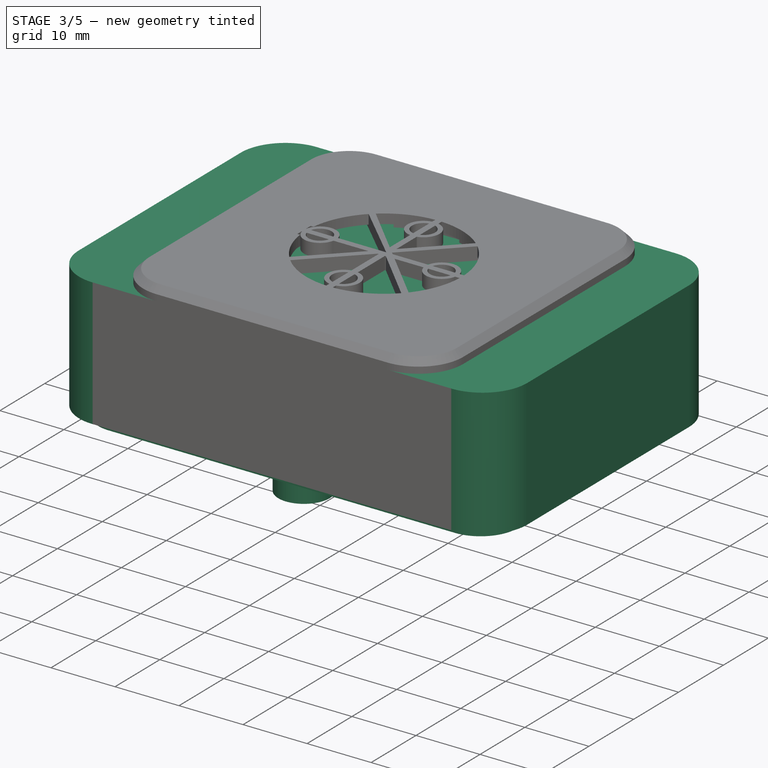
[diagram: stage 3 of 5 — iso view after this stage's code; geometry added in this stage tinted green]
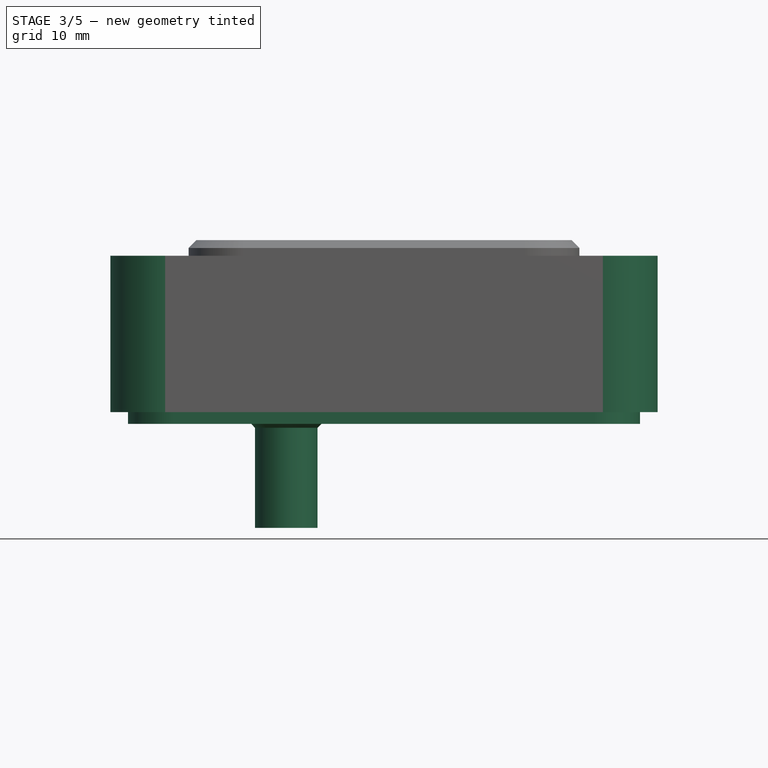
[diagram: stage 3 of 5 — front view after this stage's code; geometry added in this stage tinted green]
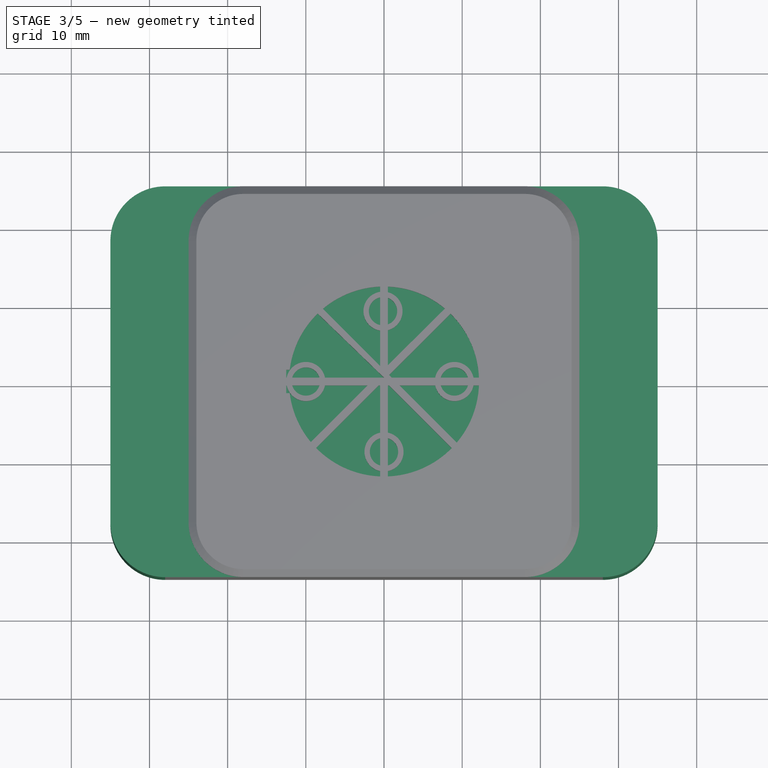
[diagram: stage 3 of 5 — top view after this stage's code; geometry added in this stage tinted green]
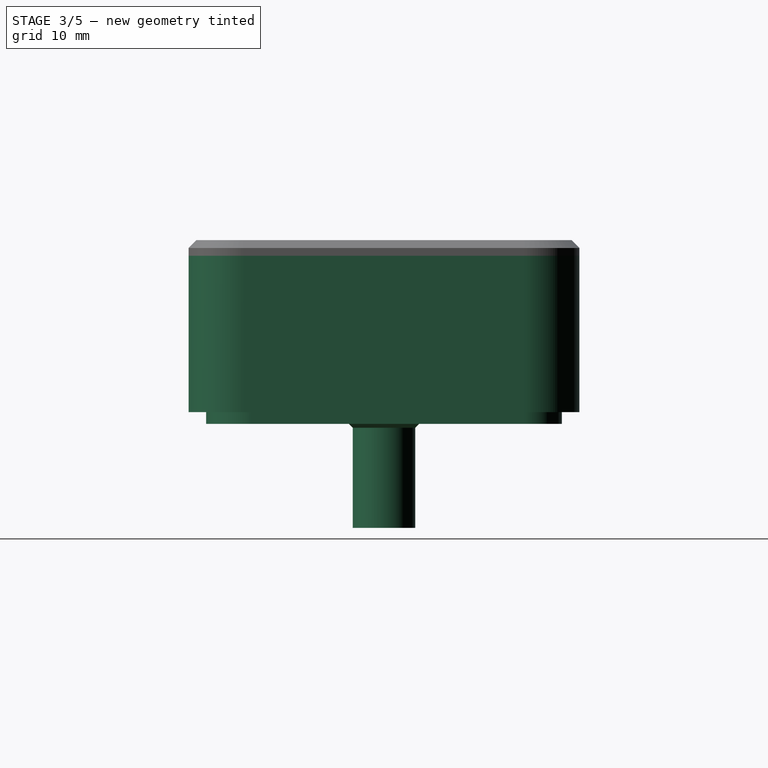
[diagram: stage 3 of 5 — right view after this stage's code; geometry added in this stage tinted green]
FEATURE [Sketcher::SketchObject] Sketch009
  MapMode = 5
  Support = -> [XY_Plane002]
  sketch-geometry (8):
    g0: ArcOfCircle CenterX=-28.0344 CenterY=17.8553 CenterZ=0 NormalX=0 NormalY=0 NormalZ=1 AngleXU=0 Radius=6.92059 StartAngle=1.5708 EndAngle=3.12119
    g1: ArcOfCircle CenterX=28.0047 CenterY=17.9984 CenterZ=0 NormalX=0 NormalY=0 NormalZ=1 AngleXU=0 Radius=6.77754 StartAngle=6.28305 EndAngle=7.85522
    g2: ArcOfCircle CenterX=27.8644 CenterY=-18.056 CenterZ=0 NormalX=0 NormalY=0 NormalZ=1 AngleXU=0 Radius=6.9181 StartAngle=4.73154 EndAngle=6.29117
    g3: ArcOfCircle CenterX=-27.9782 CenterY=-17.9976 CenterZ=0 NormalX=0 NormalY=0 NormalZ=1 AngleXU=0 Radius=6.97529 StartAngle=3.14194 EndAngle=4.70927
    g4: LineSegment StartX=-34.9535 StartY=-18 StartZ=0 EndX=-34.9535 EndY=17.9965 EndZ=0
    g5: LineSegment StartX=34.7823 StartY=17.9975 StartZ=0 EndX=34.7823 EndY=-18.0008 EndZ=0
    g6: LineSegment StartX=27.9963 StartY=24.7759 StartZ=0 EndX=-28.0344 EndY=24.7759 EndZ=0
    g7: LineSegment StartX=-28 StartY=-24.9728 StartZ=0 EndX=27.9969 EndY=-24.9728 EndZ=0
  constraints (13):
    c: Coincident(g4,g3)
    c: Coincident(g4,g0)
    c: Vertical(g4)
    c: Coincident(g5,g1)
    c: Coincident(g5,g2)
    c: Vertical(g5)
    c: Coincident(g6,g1)
    c: Coincident(g6,g0)
    c: Horizontal(g6)
    c: Tangent(g6,g0)
    c: Coincident(g7,g3)
    c: Coincident(g7,g2)
    c: Horizontal(g7)
FEATURE [PartDesign::Pad] Pad003
  Length = 2
  Length2 = 100
  Profile = -> Sketch009
  Type = 0
FEATURE [Sketcher::SketchObject] Sketch010
  MapMode = 5
  Support = -> [XY_Plane002]
  sketch-geometry (16):
    g0: ArcOfCircle CenterX=27.9998 CenterY=18 CenterZ=0 NormalX=0 NormalY=0 NormalZ=1 AngleXU=0 Radius=4.75009 StartAngle=5.17e-10 EndAngle=1.57076
    g1: ArcOfCircle CenterX=-27.5 CenterY=17.5 CenterZ=0 NormalX=0 NormalY=0 NormalZ=1 AngleXU=0 Radius=5.25009 StartAngle=1.5708 EndAngle=3.14159
    g2: ArcOfCircle CenterX=-27.0007 CenterY=-17.0006 CenterZ=0 NormalX=0 NormalY=0 NormalZ=1 AngleXU=0 Radius=5.74939 StartAngle=3.14149 EndAngle=4.71251
    g3: ArcOfCircle CenterX=26.9998 CenterY=-16.9999 CenterZ=0 NormalX=0 NormalY=0 NormalZ=1 AngleXU=0 Radius=5.7501 StartAngle=4.71242 EndAngle=6.28317
    g4: ArcOfCircle CenterX=26.9998 CenterY=-16.9999 CenterZ=0 NormalX=0 NormalY=0 NormalZ=1 AngleXU=0 Radius=4.75001 StartAngle=4.71243 EndAngle=6.28316
    g5: ArcOfCircle CenterX=27.9998 CenterY=18 CenterZ=0 NormalX=0 NormalY=0 NormalZ=1 AngleXU=0 Radius=3.75 StartAngle=0 EndAngle=1.57075
    g6: ArcOfCircle CenterX=-27.5 CenterY=17.5 CenterZ=0 NormalX=0 NormalY=0 NormalZ=1 AngleXU=0 Radius=4.25 StartAngle=1.5708 EndAngle=3.14159
    g7: ArcOfCircle CenterX=-27.0007 CenterY=-17.0006 CenterZ=0 NormalX=0 NormalY=0 NormalZ=1 AngleXU=0 Radius=4.7493 StartAngle=3.14146 EndAngle=4.71254
    g8: LineSegment StartX=-32.7501 StartY=17.5 StartZ=0 EndX=-32.7501 EndY=-17 EndZ=0
    g9: LineSegment StartX=-31.75 StartY=-17 StartZ=0 EndX=-31.75 EndY=17.5 EndZ=0
    g10: LineSegment StartX=-27.5 StartY=21.75 StartZ=0 EndX=28 EndY=21.75 EndZ=0
    g11: LineSegment StartX=28 StartY=22.7501 StartZ=0 EndX=-27.5 EndY=22.7501 EndZ=0
    g12: LineSegment StartX=31.7498 StartY=18 StartZ=0 EndX=31.7498 EndY=-17 EndZ=0
    g13: LineSegment StartX=32.7499 StartY=-17 StartZ=0 EndX=32.7499 EndY=18 EndZ=0
    g14: LineSegment StartX=27 StartY=-22.75 StartZ=0 EndX=-27 EndY=-22.75 EndZ=0
    g15: LineSegment StartX=-27 StartY=-21.7499 StartZ=0 EndX=27 EndY=-21.7499 EndZ=0
  constraints (29):
    c: Coincident(g6,g1)
    c: Coincident(g7,g2)
    c: Coincident(g8,g1)
    c: Coincident(g8,g2)
    c: Vertical(g8)
    c: Tangent(g8,g1)
    c: Coincident(g9,g7)
    c: Coincident(g9,g6)
    c: Vertical(g9)
    c: Tangent(g9,g6)
    c: Coincident(g10,g6)
    c: Coincident(g10,g5)
    c: Horizontal(g10)
    c: Tangent(g10,g6)
    c: Coincident(g11,g0)
    c: Coincident(g11,g1)
    c: Horizontal(g11)
    c: Coincident(g12,g5)
    c: Coincident(g12,g4)
    c: Vertical(g12)
    c: Coincident(g13,g3)
    c: Coincident(g13,g0)
    c: Vertical(g13)
    c: Coincident(g14,g3)
    c: Coincident(g14,g2)
    c: Horizontal(g14)
    c: Coincident(g15,g7)
    c: Coincident(g15,g4)
    c: Horizontal(g15)
FEATURE [PartDesign::Pad] Pad004
  BaseFeature = -> Pad003
  Length = 1.5
  Length2 = 100
  Profile = -> Sketch010
  Reversed = true
  Type = 0
FEATURE [Sketcher::SketchObject] Sketch011
  MapMode = 5
  Support = -> [XY_Plane002]
  sketch-geometry (2):
    g0: Circle CenterX=-12.5 CenterY=0 CenterZ=0 NormalX=0 NormalY=0 NormalZ=1 AngleXU=0 Radius=4.00038
    g1: Circle CenterX=-12.5 CenterY=0 CenterZ=0 NormalX=0 NormalY=0 NormalZ=1 AngleXU=0 Radius=1.5
  constraints (1):
    c: Coincident(g1,g0)
FEATURE [PartDesign::Pad] Pad005
  BaseFeature = -> Pad004
  Length = 14.8
  Length2 = 100
  Profile = -> Sketch011
  Reversed = true
  Type = 0
FEATURE [PartDesign::Chamfer] Chamfer
  Base = -> Pad005 [Face5]
  BaseFeature = -> Pad005
  Size = 1
FEATURE [PartDesign::Pad] Pad
  Length = 20
  Length2 = 100
  Profile = -> Sketch
  Type = 0
FEATURE [App::Part] Part  label="base"
  Group = -> [ShapeString001,Extrude,Extrude001,ShapeString,ShapeString002,Extrude002,Fusion,Body,Cut002]
  License = CC BY 3.0
  LicenseURL = http://creativecommons.org/licenses/by/3.0/
  Origin = -> Origin005
FEATURE [PartDesign::Chamfer] Chamfer002
  Base = -> Chamfer [Edge89]
  BaseFeature = -> Chamfer
  Size = 2
FEATURE [Sketcher::SketchObject] Sketch023
  AttachmentOffset = pos=(0,0,17) rot=(0,0,1;0rad)
  MapMode = 5
  Placement = pos=(0,0,17) rot=(0,0,1;0rad)
  Support = -> [XY_Plane007]
  sketch-geometry (2):
    g0: Circle CenterX=0 CenterY=0 CenterZ=0 NormalX=0 NormalY=0 NormalZ=1 AngleXU=0 Radius=4.5
    g1: Circle CenterX=0 CenterY=0 CenterZ=0 NormalX=0 NormalY=0 NormalZ=1 AngleXU=0 Radius=10
  constraints (1):
    c: Coincident(g0,g-1)
FEATURE [PartDesign::Pocket] Pocket011
  BaseFeature = -> Pad009
  Length = 10
  Length2 = 100
  Profile = -> Sketch023
  Type = 0
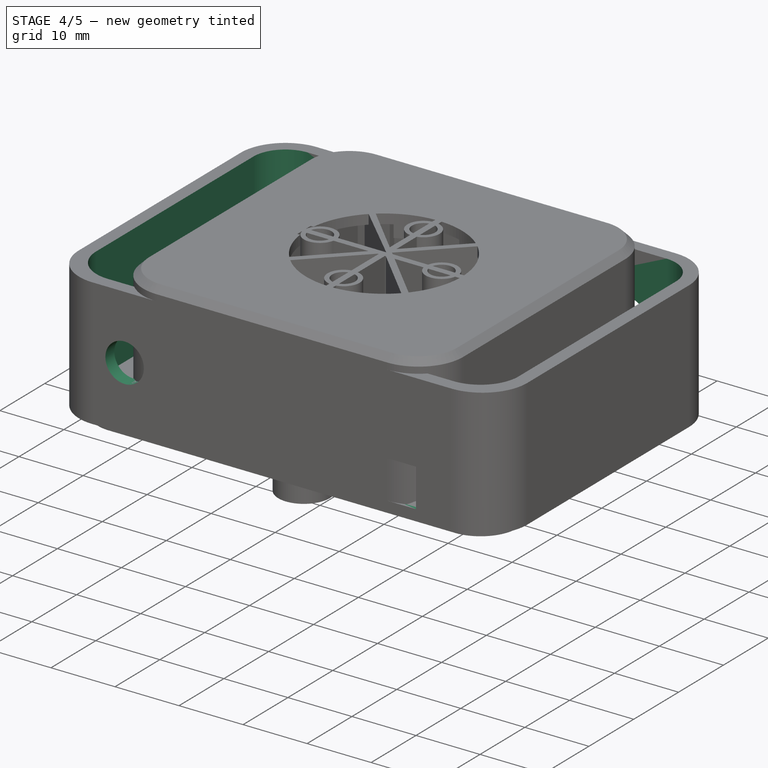
[diagram: stage 4 of 5 — iso view after this stage's code; geometry added in this stage tinted green]
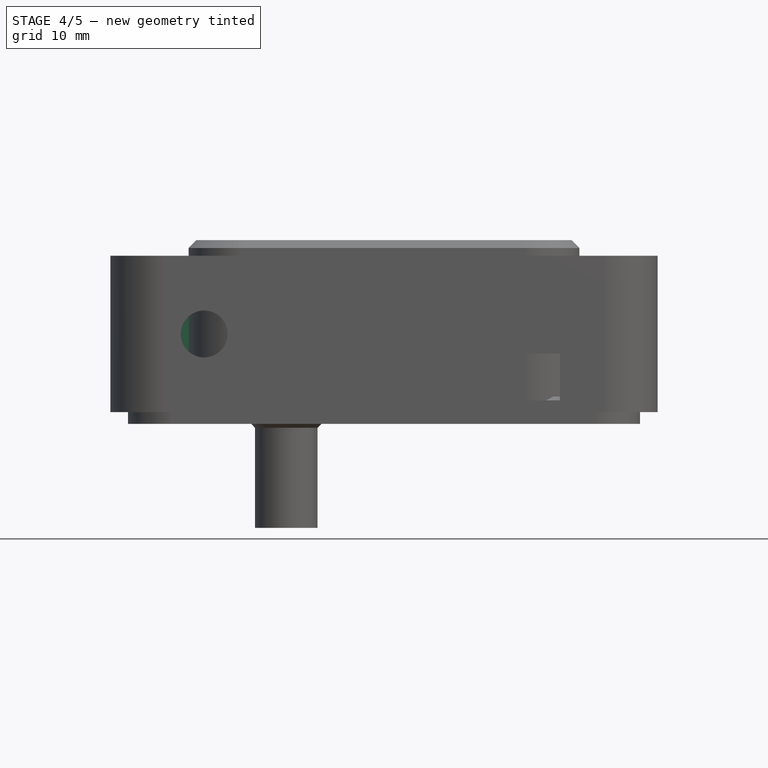
[diagram: stage 4 of 5 — front view after this stage's code; geometry added in this stage tinted green]
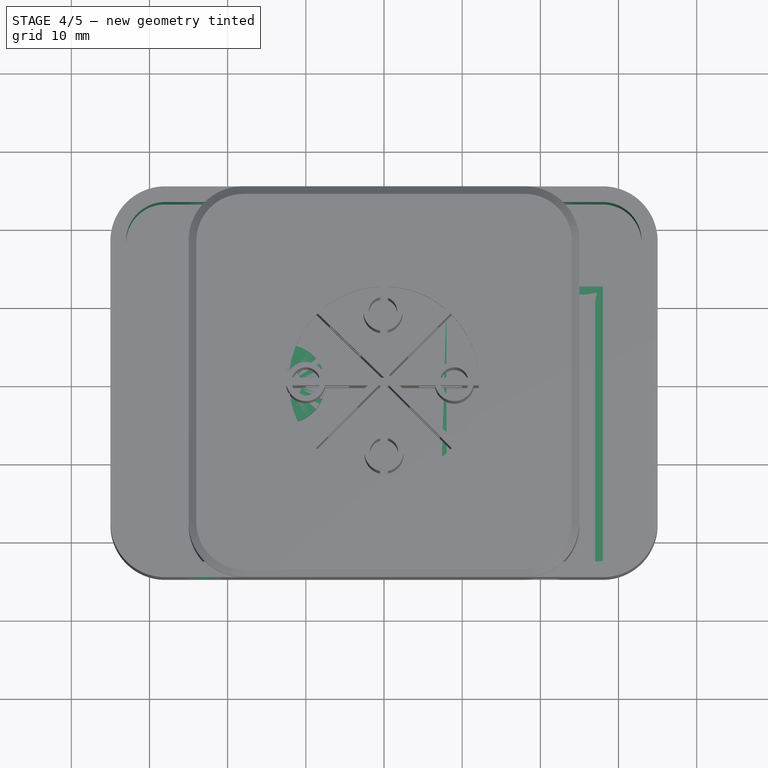
[diagram: stage 4 of 5 — top view after this stage's code; geometry added in this stage tinted green]
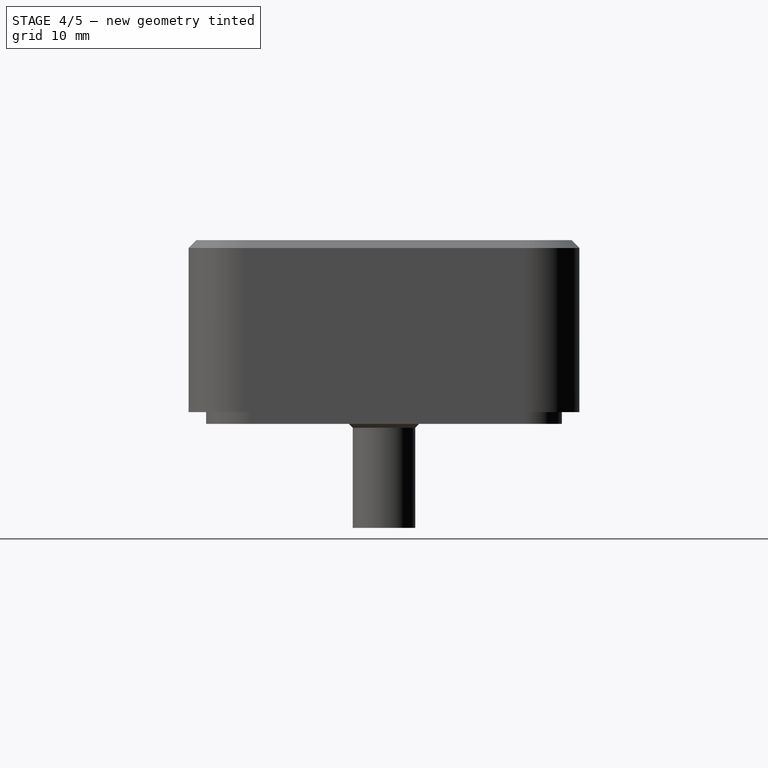
[diagram: stage 4 of 5 — right view after this stage's code; geometry added in this stage tinted green]
FEATURE [PartDesign::Pocket] Pocket
  BaseFeature = -> Pad
  Length = 35
  Length2 = 100
  Profile = -> Sketch001
  Reversed = true
  Type = 0
FEATURE [PartDesign::Pocket] Pocket001
  BaseFeature = -> Pocket
  Length = 6
  Length2 = 100
  Profile = -> Sketch005
  Reversed = true
  Type = 0
FEATURE [PartDesign::Pad] Pad006
  BaseFeature = -> Pocket001
  Length = 3
  Length2 = 100
  Profile = -> Sketch002
  Type = 0
FEATURE [PartDesign::Pocket] Pocket002
  BaseFeature = -> Pad006
  Length = 5
  Length2 = 100
  Profile = -> Sketch004
  Type = 0
FEATURE [PartDesign::Pad] Pad007
  BaseFeature = -> Pocket002
  Length = 5
  Length2 = 100
  Profile = -> Sketch006
  Type = 0
FEATURE [PartDesign::Pocket] Pocket003
  BaseFeature = -> Pad007
  Length = 12
  Length2 = 100
  Profile = -> Sketch007
  Reversed = true
  Type = 0
FEATURE [PartDesign::Pocket] Pocket004
  BaseFeature = -> Pocket003
  Length = 3
  Length2 = 100
  Profile = -> Sketch008
  Reversed = true
  Type = 0
FEATURE [PartDesign::Pocket] Pocket005
  BaseFeature = -> Pocket004
  Length = 5
  Length2 = 100
  Profile = -> Sketch003
  Refine = true
  Type = 0
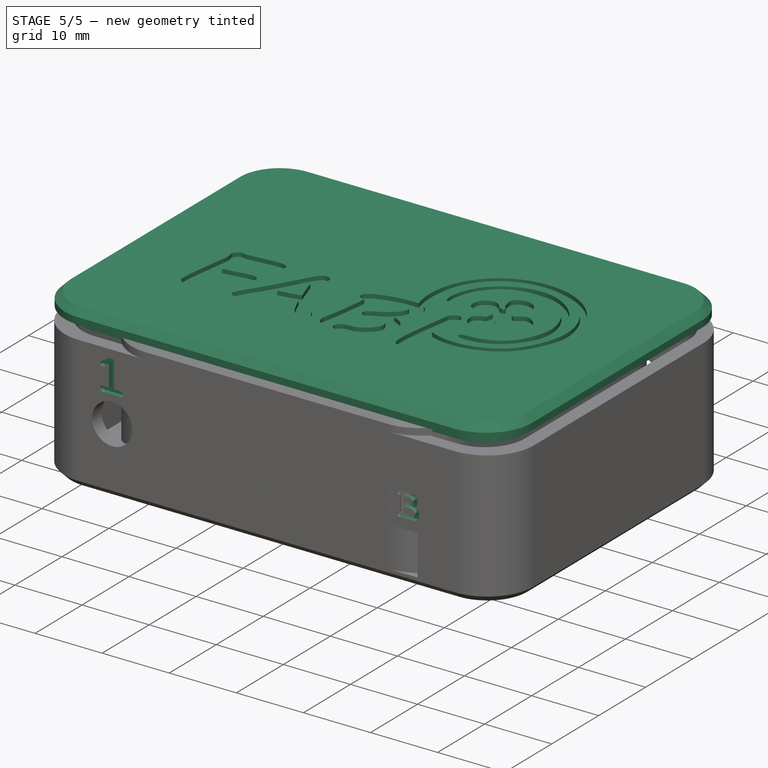
[diagram: stage 5 of 5 — iso view after this stage's code; geometry added in this stage tinted green]
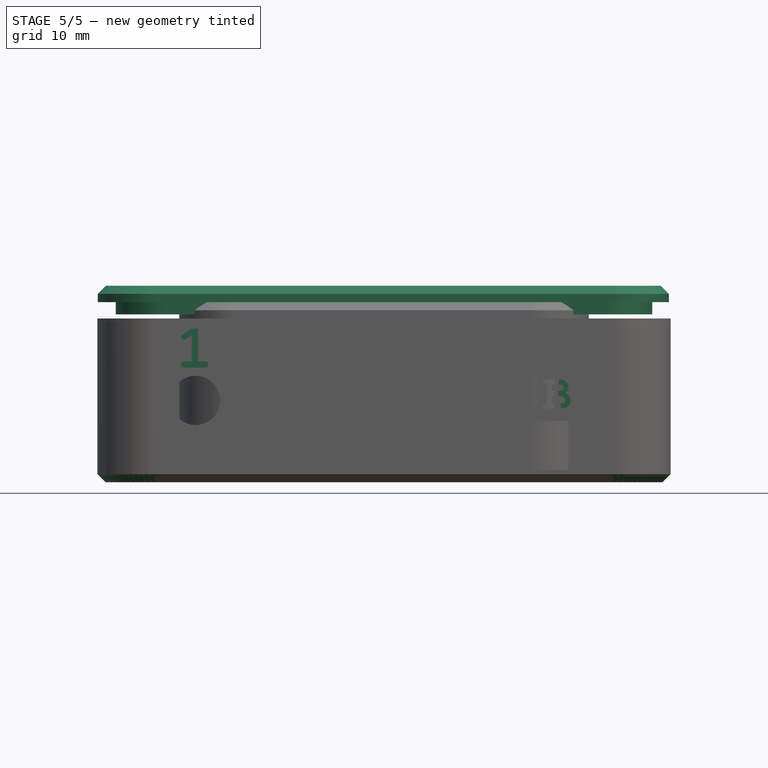
[diagram: stage 5 of 5 — front view after this stage's code; geometry added in this stage tinted green]
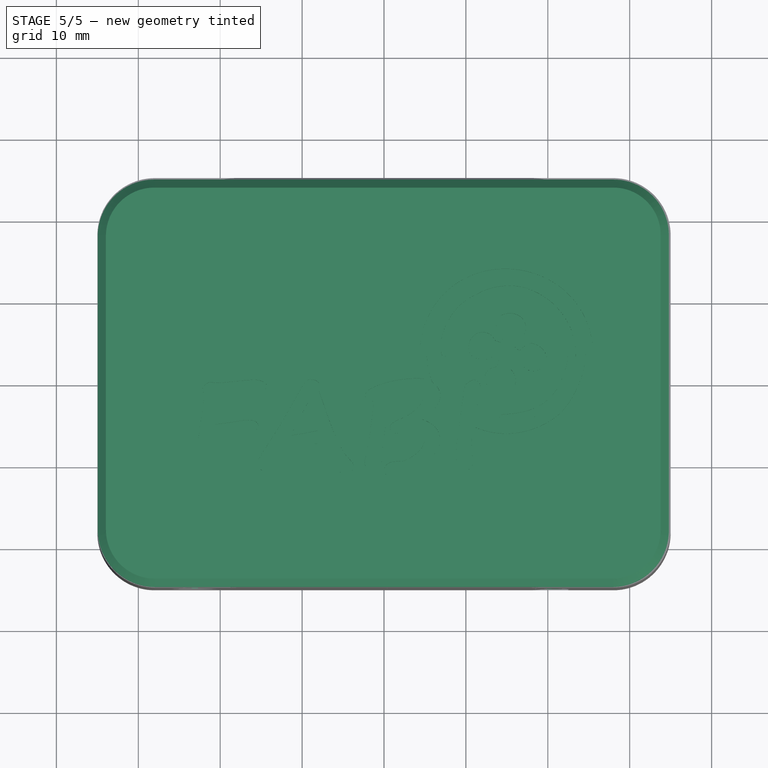
[diagram: stage 5 of 5 — top view after this stage's code; geometry added in this stage tinted green]
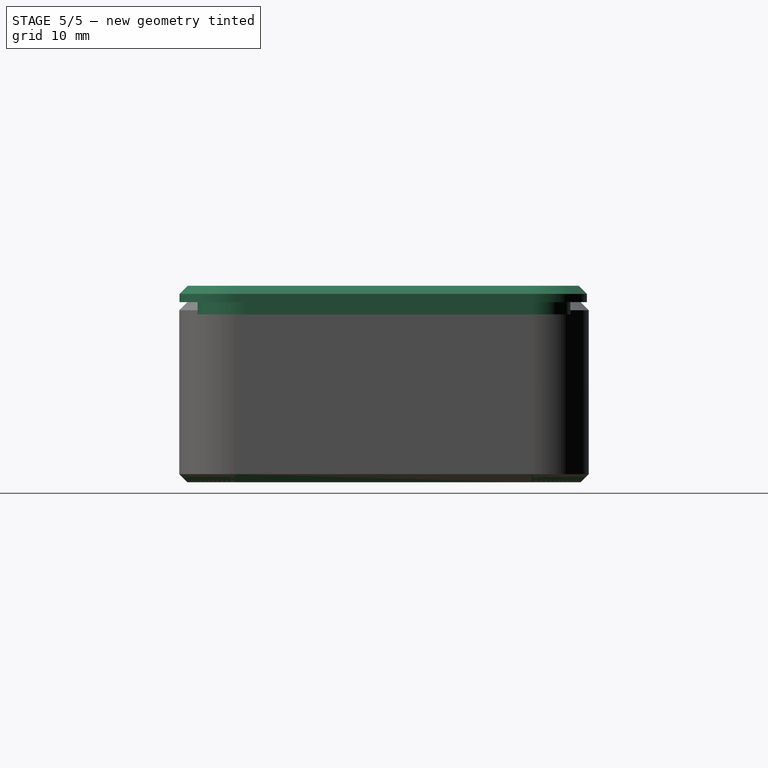
[diagram: stage 5 of 5 — right view after this stage's code; geometry added in this stage tinted green]
FEATURE [Sketcher::SketchObject] Sketch
  MapMode = 5
  sketch-geometry (8):
    g0: ArcOfCircle CenterX=-28 CenterY=-18 CenterZ=0 NormalX=0 NormalY=0 NormalZ=1 AngleXU=0 Radius=7 StartAngle=3.14159 EndAngle=4.71239
    g1: ArcOfCircle CenterX=28 CenterY=-18 CenterZ=0 NormalX=0 NormalY=0 NormalZ=1 AngleXU=0 Radius=7 StartAngle=4.71239 EndAngle=6.28319
    g2: ArcOfCircle CenterX=28 CenterY=18 CenterZ=0 NormalX=0 NormalY=0 NormalZ=1 AngleXU=0 Radius=7 StartAngle=2.6507e-08 EndAngle=1.5708
    g3: ArcOfCircle CenterX=-28 CenterY=18 CenterZ=0 NormalX=0 NormalY=0 NormalZ=1 AngleXU=0 Radius=7 StartAngle=1.5708 EndAngle=3.14159
    g4: LineSegment StartX=-28 StartY=-25 StartZ=0 EndX=28 EndY=-25 EndZ=0
    g5: LineSegment StartX=35 StartY=-18 StartZ=0 EndX=35 EndY=18 EndZ=0
    g6: LineSegment StartX=28 StartY=25 StartZ=0 EndX=-28 EndY=25 EndZ=0
    g7: LineSegment StartX=-35 StartY=18 StartZ=0 EndX=-35 EndY=-18 EndZ=0
  constraints (12):
    c: Coincident(g4,g0)
    c: Coincident(g4,g1)
    c: Horizontal(g4)
    c: Coincident(g5,g1)
    c: Coincident(g5,g2)
    c: Vertical(g5)
    c: Coincident(g6,g2)
    c: Coincident(g6,g3)
    c: Horizontal(g6)
    c: Coincident(g7,g3)
    c: Coincident(g7,g0)
    c: Vertical(g7)
FEATURE [Sketcher::SketchObject] Sketch001
  AttachmentOffset = pos=(0,0,1.5) rot=(0,0,1;0rad)
  MapMode = 5
  Placement = pos=(0,0,1.5) rot=(0,0,1;0rad)
  sketch-geometry (8):
    g0: ArcOfCircle CenterX=-27.0032 CenterY=-16.9993 CenterZ=0 NormalX=0 NormalY=0 NormalZ=1 AngleXU=0 Radius=6.00083 StartAngle=3.14069 EndAngle=4.71239
    g1: ArcOfCircle CenterX=26.9815 CenterY=-17.0226 CenterZ=0 NormalX=0 NormalY=0 NormalZ=1 AngleXU=0 Radius=5.97757 StartAngle=4.71573 EndAngle=6.28319
    g2: ArcOfCircle CenterX=27.9719 CenterY=18.0128 CenterZ=0 NormalX=0 NormalY=0 NormalZ=1 AngleXU=0 Radius=4.98724 StartAngle=6.28049 EndAngle=7.8483
    g3: ArcOfCircle CenterX=-28 CenterY=17.9959 CenterZ=0 NormalX=0 NormalY=0 NormalZ=1 AngleXU=0 Radius=5.00404 StartAngle=1.5708 EndAngle=3.14159
    g4: LineSegment StartX=-28 StartY=23 StartZ=0 EndX=28.0002 EndY=23 EndZ=0
    g5: LineSegment StartX=32.9591 StartY=17.9994 StartZ=0 EndX=32.9591 EndY=-17.0226 EndZ=0
    g6: LineSegment StartX=27.0015 StartY=-23.0002 StartZ=0 EndX=-27.0032 EndY=-23.0002 EndZ=0
    g7: LineSegment StartX=-33.004 StartY=-16.9939 StartZ=0 EndX=-33.004 EndY=17.9959 EndZ=0
  constraints (16):
    c: Coincident(g4,g3)
    c: Coincident(g4,g2)
    c: Horizontal(g4)
    c: Tangent(g4,g3)
    c: Coincident(g5,g2)
    c: Coincident(g5,g1)
    c: Vertical(g5)
    c: Tangent(g5,g1)
    c: Coincident(g6,g1)
    c: Coincident(g6,g0)
    c: Horizontal(g6)
    c: Tangent(g6,g0)
    c: Coincident(g7,g0)
    c: Coincident(g7,g3)
    c: Vertical(g7)
    c: Tangent(g7,g3)
FEATURE [Sketcher::SketchObject] Sketch002
  MapMode = 5
  Support = -> [XY_Plane004]
  sketch-geometry (12):
    g0: LineSegment StartX=8 StartY=-23 StartZ=0 EndX=8 EndY=10.4471 EndZ=0
    g1: LineSegment StartX=9 StartY=11.5 StartZ=0 EndX=26 EndY=11.5 EndZ=0
    g2: LineSegment StartX=27 StartY=10.5 StartZ=0 EndX=27 EndY=-23 EndZ=0
    g3: LineSegment StartX=28 StartY=-23 StartZ=0 EndX=27 EndY=-23 EndZ=0
    g4: LineSegment StartX=7 StartY=-23 StartZ=0 EndX=7 EndY=12.5 EndZ=0
    g5: LineSegment StartX=7 StartY=12.5 StartZ=0 EndX=28 EndY=12.5 EndZ=0
    g6: LineSegment StartX=28 StartY=12.5 StartZ=0 EndX=28 EndY=-23 EndZ=0
    g7: LineSegment StartX=8 StartY=-23 StartZ=0 EndX=7 EndY=-23 EndZ=0
    g8: LineSegment StartX=9 StartY=11.5 StartZ=0 EndX=7.75 EndY=11.75 EndZ=0
    g9: LineSegment StartX=7.75 StartY=11.75 StartZ=0 EndX=8 EndY=10.4471 EndZ=0
    g10: LineSegment StartX=26 StartY=11.5 StartZ=0 EndX=27.25 EndY=11.75 EndZ=0
    g11: LineSegment StartX=27.25 StartY=11.75 StartZ=0 EndX=27 EndY=10.5 EndZ=0
  constraints (20):
    c: Horizontal(g1)
    c: Vertical(g0)
    c: Vertical(g2)
    c: Coincident(g7,g4)
    c: Coincident(g4,g5)
    c: Coincident(g5,g6)
    c: Coincident(g6,g3)
    c: Horizontal(g3)
    c: Horizontal(g5)
    c: Vertical(g4)
    c: Vertical(g6)
    c: PointOnObject(g3,g2)
    c: PointOnObject(g7,g0)
    c: Tangent(g3,g7)
    c: Coincident(g8,g9)
    c: Coincident(g1,g8)
    c: PointOnObject(g0,g9)
    c: Coincident(g10,g11)
    c: Coincident(g1,g10)
    c: Coincident(g2,g11)
FEATURE [Sketcher::SketchObject] Sketch003
  AttachmentOffset = pos=(0,0,26) rot=(0,0,1;0rad)
  MapMode = 5
  Placement = pos=(0,-26,0) rot=(1,0,0;1.5708rad)
  sketch-geometry (4):
    g0: LineSegment StartX=12.5 StartY=1.5 StartZ=0 EndX=22.5 EndY=1.5 EndZ=0
    g1: LineSegment StartX=22.5 StartY=1.5 StartZ=0 EndX=22.5 EndY=7.5 EndZ=0
    g2: LineSegment StartX=22.5 StartY=7.5 StartZ=0 EndX=12.5 EndY=7.5 EndZ=0
    g3: LineSegment StartX=12.5 StartY=7.5 StartZ=0 EndX=12.5 EndY=1.5 EndZ=0
  constraints (8):
    c: Coincident(g0,g1)
    c: Coincident(g1,g2)
    c: Coincident(g2,g3)
    c: Coincident(g3,g0)
    c: Horizontal(g0)
    c: Horizontal(g2)
    c: Vertical(g1)
    c: Vertical(g3)
FEATURE [Sketcher::SketchObject] Sketch004
  AttachmentOffset = pos=(0,0,25) rot=(0,0,1;0rad)
  MapMode = 5
  Placement = pos=(0,-25,1) rot=(1,0,0;1.5708rad)
  sketch-geometry (3):
    g0: Circle CenterX=-23 CenterY=9 CenterZ=0 NormalX=0 NormalY=0 NormalZ=1 AngleXU=0 Radius=3
    g1: Circle CenterX=-11 CenterY=9 CenterZ=0 NormalX=0 NormalY=0 NormalZ=1 AngleXU=0 Radius=3
    g2: Circle CenterX=1 CenterY=9 CenterZ=0 NormalX=0 NormalY=0 NormalZ=1 AngleXU=0 Radius=3
FEATURE [Sketcher::SketchObject] Sketch005
  AttachmentOffset = pos=(0,0,-28) rot=(0,0,1;0rad)
  MapMode = 5
  Placement = pos=(0,28,1) rot=(1,0,0;1.5708rad)
  sketch-geometry (5):
    g0: Circle CenterX=-22 CenterY=9 CenterZ=0 NormalX=0 NormalY=0 NormalZ=1 AngleXU=0 Radius=3
    g1: Circle CenterX=-11 CenterY=9 CenterZ=0 NormalX=0 NormalY=0 NormalZ=1 AngleXU=0 Radius=3
    g2: Circle CenterX=0 CenterY=9 CenterZ=0 NormalX=0 NormalY=0 NormalZ=1 AngleXU=0 Radius=3
    g3: Circle CenterX=11 CenterY=9 CenterZ=0 NormalX=0 NormalY=0 NormalZ=1 AngleXU=0 Radius=3
    g4: Circle CenterX=22 CenterY=9 CenterZ=0 NormalX=0 NormalY=0 NormalZ=1 AngleXU=0 Radius=3
FEATURE [Sketcher::SketchObject] Sketch006
  MapMode = 5
  sketch-geometry (1):
    g0: Circle CenterX=-12.5 CenterY=0 CenterZ=0 NormalX=0 NormalY=0 NormalZ=1 AngleXU=0 Radius=5
FEATURE [Sketcher::SketchObject] Sketch007
  MapMode = 5
  sketch-geometry (1):
    g0: Circle CenterX=-12.5 CenterY=0 CenterZ=0 NormalX=0 NormalY=0 NormalZ=1 AngleXU=0 Radius=2
  constraints (1):
    c: PointOnObject(g0,g-1)
FEATURE [Sketcher::SketchObject] Sketch008
  MapMode = 5
  sketch-geometry (1):
    g0: Circle CenterX=-12.5 CenterY=0 CenterZ=0 NormalX=0 NormalY=0 NormalZ=1 AngleXU=0 Radius=3.5
  constraints (1):
    c: PointOnObject(g0,g-1)
FEATURE [Part::Part2DObjectPython] ShapeString001  # Draft 2D object (typed FeaturePython)
  FontFile = <path>
  Placement = pos=(-25.4,-25,13) rot=(1,0,0;1.5708rad)
  Size = 2.5
  String = 1 2 3
  Tracking = 1.4
FEATURE [Part::Extrusion] Extrude
  Base = -> ShapeString001
  Dir = (0,-1,0)
  DirMode = 2
  FaceMakerClass = Part::FaceMakerBullseye
  LengthFwd = 0.6
  LengthRev = 0
  Placement = pos=(0,0.6,0) rot=(0,0,1;0rad)
  Solid = false
  Symmetric = false
FEATURE [Part::Part2DObjectPython] ShapeString  # Draft 2D object (typed FeaturePython)
  FontFile = <path>
  Placement = pos=(24.49,24.4,13) rot=(0,0.707107,0.707107;3.14159rad)
  Size = 2.5
  String = 4 5 6 7 8
  Tracking = 0.88
FEATURE [Part::Extrusion] Extrude001
  Base = -> ShapeString
  Dir = (0,1,0)
  DirMode = 2
  FaceMakerClass = Part::FaceMakerBullseye
  LengthFwd = 0.6
  LengthRev = 0
  Solid = false
  Symmetric = false
FEATURE [Part::Part2DObjectPython] ShapeString002  # Draft 2D object (typed FeaturePython)
  FontFile = <path>
  Placement = pos=(11.8,-25,8) rot=(1,0,0;1.5708rad)
  Size = 2
  String = USB
  Tracking = 0
FEATURE [Part::Extrusion] Extrude002
  Base = -> ShapeString002
  Dir = (0,-1,0)
  DirMode = 2
  FaceMakerClass = Part::FaceMakerBullseye
  LengthFwd = 0.6
  LengthRev = 0
  Reversed = true
  Solid = false
  Symmetric = false
FEATURE [Part::Feature] path4500
  shape: bbox 28.03 x 25.34 x 2e-07 mm, 1 faces, 0 solids (baked)
FEATURE [Part::Feature] path4500004
  shape: bbox 8.609 x 11.59 x 2e-07 mm, 1 faces, 0 solids (baked)
FEATURE [Part::Feature] path4500006
  shape: bbox 11.82 x 11.6 x 2e-07 mm, 1 faces, 0 solids (baked)
FEATURE [Part::Feature] path4500008
  shape: bbox 3.302 x 4.038 x 2e-07 mm, 1 faces, 0 solids (baked)
FEATURE [Part::Feature] path4500010
  shape: bbox 16.57 x 16.64 x 2e-07 mm, 1 faces, 0 solids (baked)
FEATURE [Part::Feature] path4500055
  shape: bbox 9.589 x 9.787 x 2e-07 mm, 1 faces, 0 solids (baked)
FEATURE [Part::Cut] Cut001
  Base = -> path4500006
  Tool = -> path4500008
FEATURE [Part::MultiFuse] Fusion001
  Shapes = -> [Cut001,path4500,path4500004,path4500010,path4500055]
FEATURE [Part::Extrusion] Extrude003
  Base = -> Fusion001
  Dir = (0,0,1)
  DirMode = 0
  FaceMakerClass = Part::FaceMakerBullseye
  LengthFwd = 0.6
  LengthRev = 0
  Placement = pos=(-32,195,23.4) rot=(0,0,1;0rad)
  Solid = false
  Symmetric = false
FEATURE [Part::MultiFuse] Fusion
  Placement = pos=(0,0,1) rot=(0,0,1;0rad)
  Shapes = -> [Extrude002,Extrude,Extrude001]
FEATURE [PartDesign::Chamfer] Chamfer001
  Base = -> Pocket005 [Edge8]
  BaseFeature = -> Pocket005
  Size = 1
FEATURE [PartDesign::Body] Body
  Group = -> [Sketch001,Sketch005,Sketch007,Sketch,Sketch002,Sketch003,Sketch006,Sketch004,Sketch008,Pad,Pocket,Pocket001,Pad006,Pocket002,Pad007,Pocket003,Pocket004,Pocket005,Chamfer001]
  Origin = -> Origin004
  Tip = -> Chamfer001
FEATURE [Part::Cut] Cut002
  Base = -> Body
  Tool = -> Fusion
FEATURE [PartDesign::Body] Body001
  Group = -> [Sketch009,Pad003,Sketch010,Pad004,Sketch011,Pad005,Chamfer,Chamfer002]
  Origin = -> Origin002
  Placement = pos=(0,0,22) rot=(0,0,1;0rad)
  Tip = -> Chamfer002
FEATURE [Part::Cut] Cut
  Base = -> Body001
  Tool = -> Extrude003
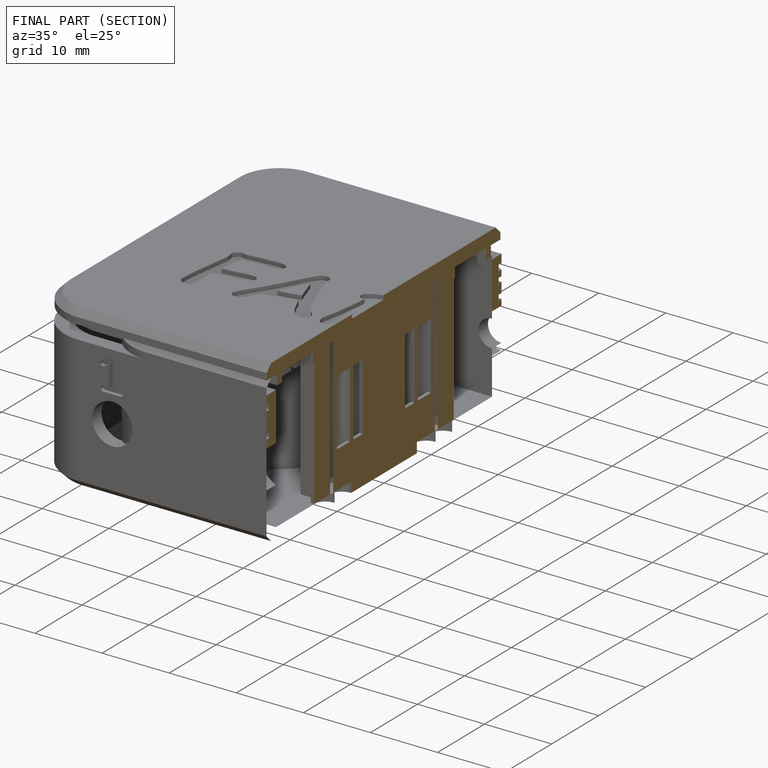
[diagram: finished part — half-section view (interior)]
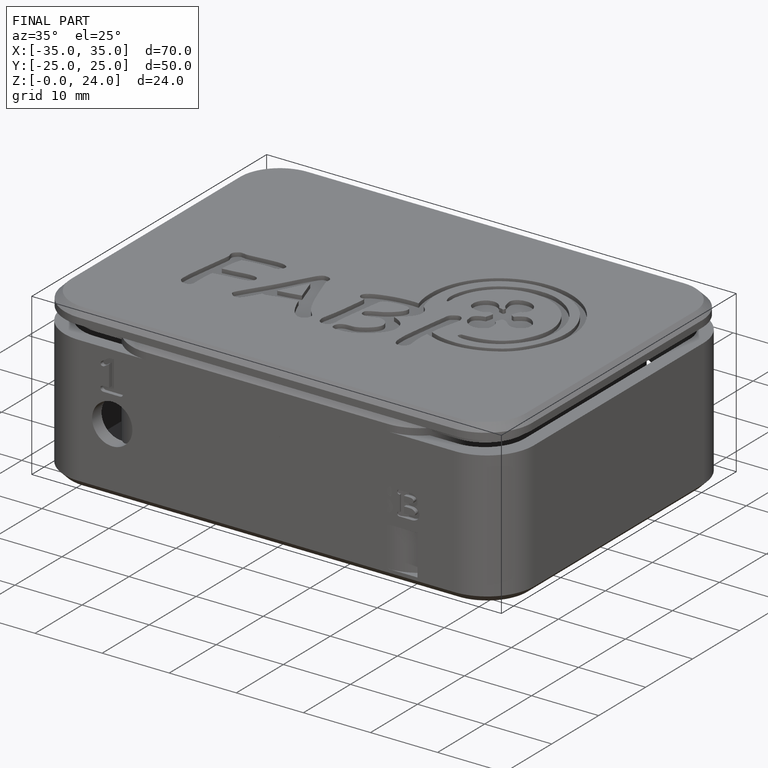
[diagram: finished part — iso view with bounding-box wireframe]
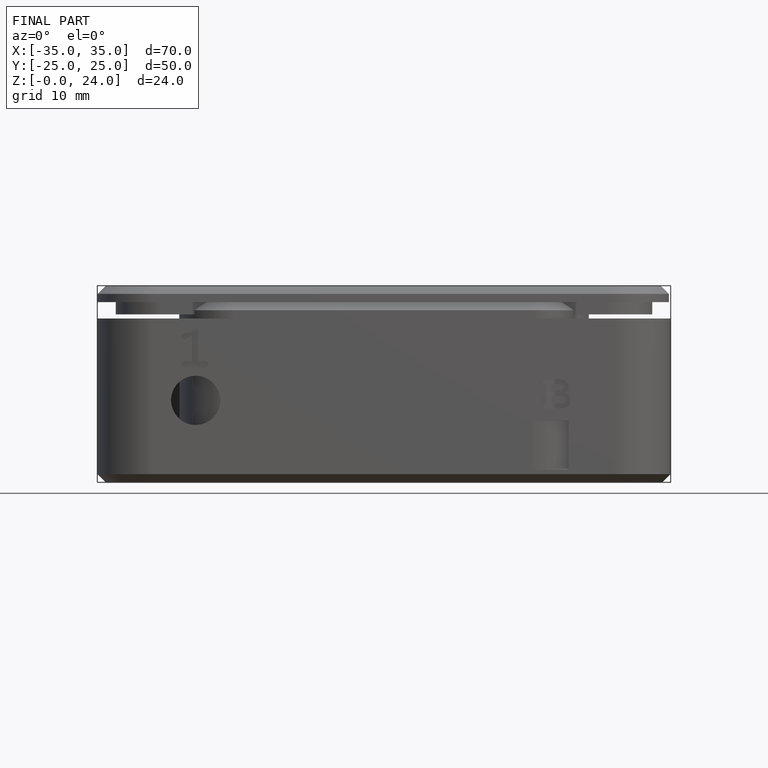
[diagram: finished part — front view with bounding-box wireframe]
